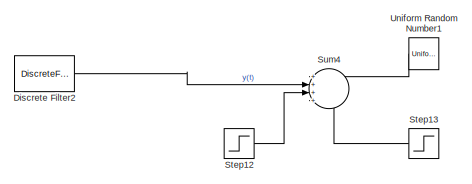
[diagram: root canvas - part 1/5, top right region]
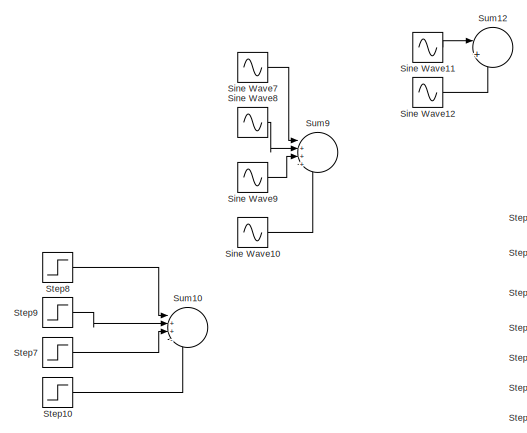
[diagram: root canvas - part 2/5, top left region]
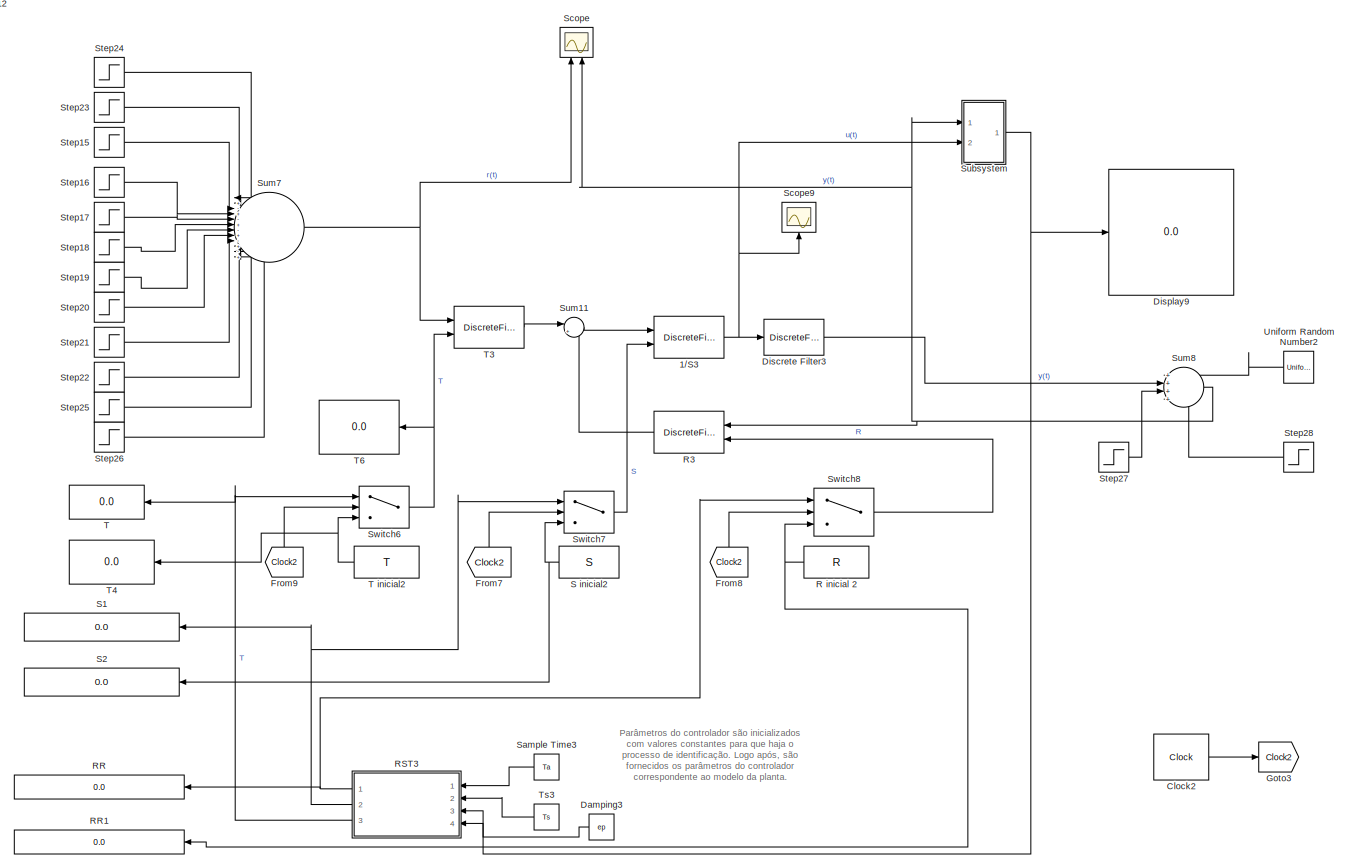
[diagram: root canvas - part 3/5, top center region]
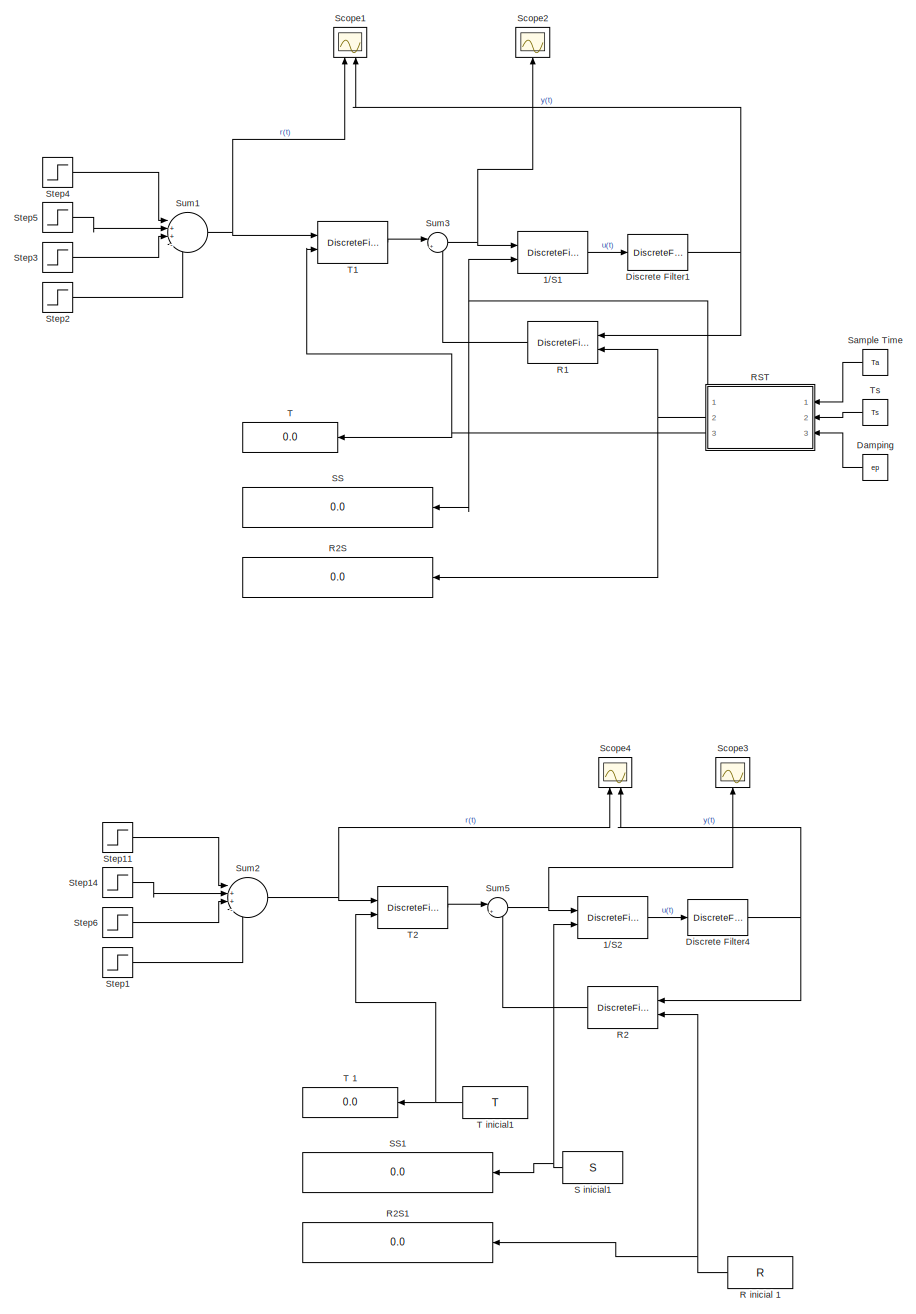
[diagram: root canvas - part 4/5, middle right region]
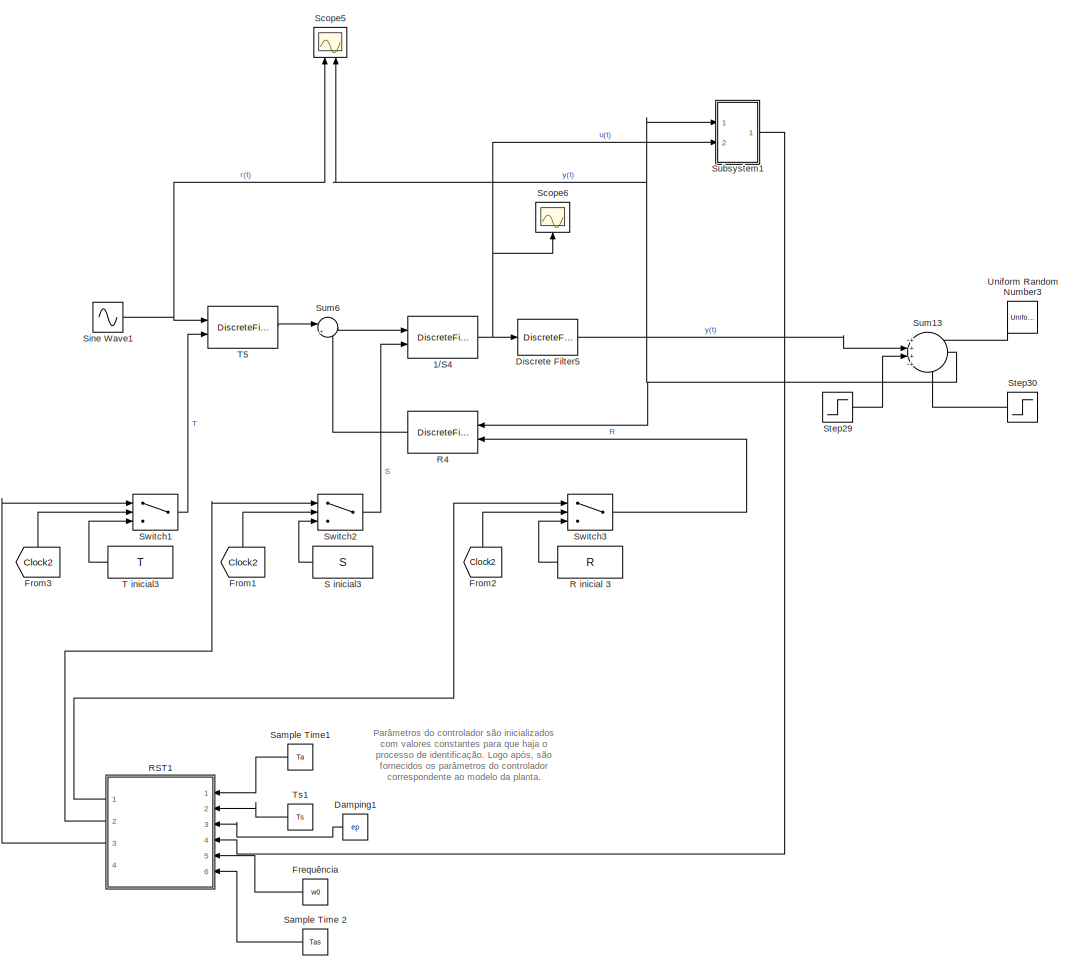
[diagram: root canvas - part 5/5, bottom center region]
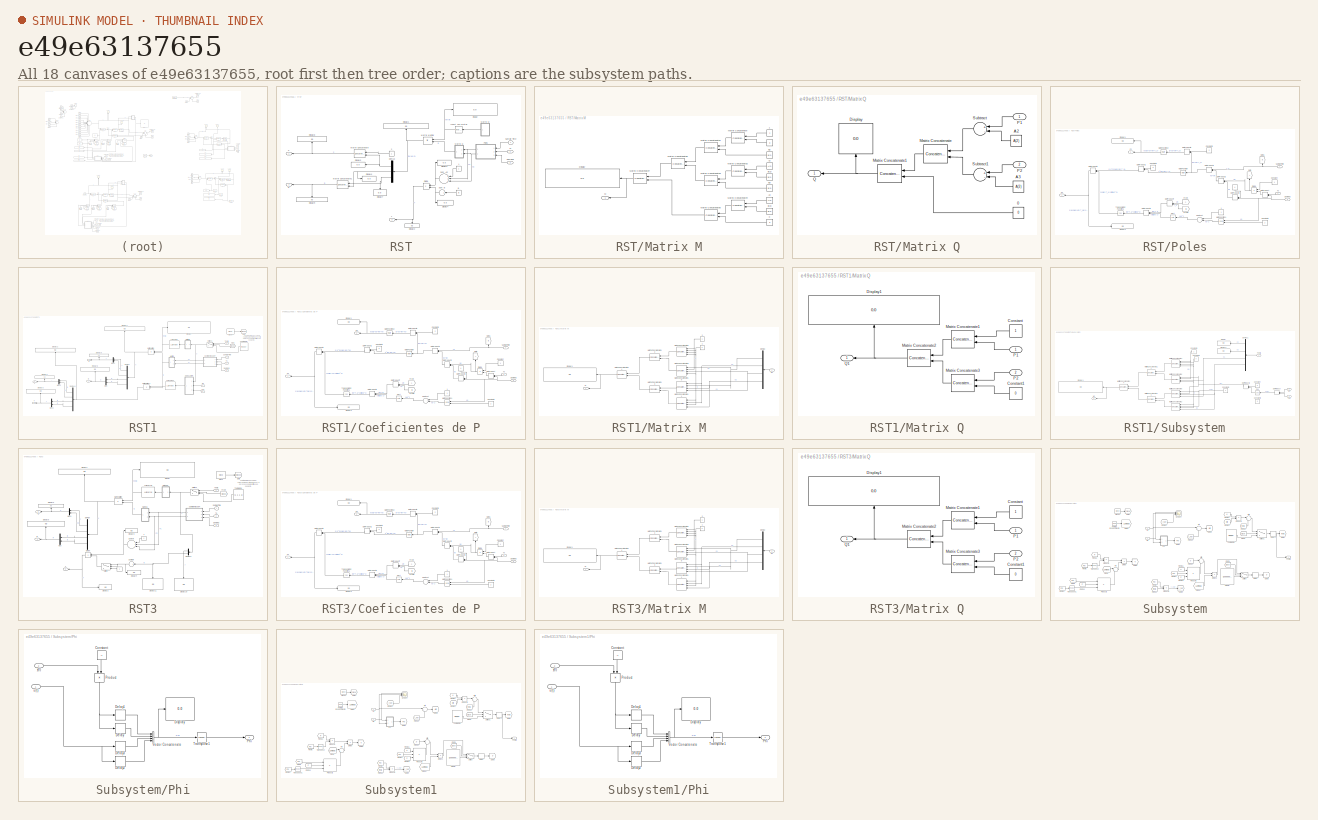
[diagram: thumbnail index - all 18 canvases of the model, root first then tree order]
MODEL slx_e49e63137655
KIND model
CONFIG AbsTol = auto
CONFIG EnableMultiTasking = off
CONFIG FixedStep = auto
CONFIG MaxStep = auto
CONFIG MinStep = auto
CONFIG RelTol = 1e-3
CONFIG SampleTimeConstraint = Unconstrained
CONFIG Solver = VariableStepAuto
CONFIG SolverName = VariableStepAuto
CONFIG StartTime = 0.0
CONFIG StopTime = 150
BLOCK [DiscreteFilter] 1//S1
  Commented = on
  Denominator = 1
  DenominatorSource = Input port
  InputPortMap = u0,p3
  Numerator = 1
  Ports = [2, 1]
  a0EqualsOne = on
BLOCK [DiscreteFilter] 1//S2
  Commented = on
  Denominator = 1
  DenominatorSource = Input port
  InputPortMap = u0,p3
  Numerator = 1
  Ports = [2, 1]
  a0EqualsOne = on
BLOCK [DiscreteFilter] 1//S3
  Denominator = 1
  DenominatorSource = Input port
  InputPortMap = u0,p3
  Numerator = 1
  Ports = [2, 1]
  a0EqualsOne = on
BLOCK [DiscreteFilter] 1//S4
  Commented = on
  Denominator = 1
  DenominatorSource = Input port
  InputPortMap = u0,p3
  Numerator = 1
  Ports = [2, 1]
  a0EqualsOne = on
BLOCK [Clock] Clock2
  DisplayTime = on
BLOCK [Constant] Damping
  Commented = on
  Value = ep
BLOCK [Constant] Damping1
  Commented = on
  Value = ep
BLOCK [Constant] Damping3
  Value = ep
BLOCK [DiscreteFilter] Discrete Filter1
  Commented = on
  Denominator = A
  InputPortMap = u0
  Numerator = B
  Ports = [1, 1]
  a0EqualsOne = on
BLOCK [DiscreteFilter] Discrete Filter2
  Commented = on
  Denominator = A
  InputPortMap = u0
  Numerator = B
  Ports = [1, 1]
  a0EqualsOne = on
BLOCK [DiscreteFilter] Discrete Filter3
  Denominator = A
  InputPortMap = u0
  Numerator = B
  Ports = [1, 1]
  a0EqualsOne = on
BLOCK [DiscreteFilter] Discrete Filter4
  Commented = on
  Denominator = A
  InputPortMap = u0
  Numerator = B
  Ports = [1, 1]
  a0EqualsOne = on
BLOCK [DiscreteFilter] Discrete Filter5
  Commented = on
  Denominator = A
  InputPortMap = u0
  Numerator = B
  Ports = [1, 1]
  a0EqualsOne = on
BLOCK [Display] Display9
  Decimation = 1
  Ports = [1]
BLOCK [Constant] Frequência
  Commented = on
  Value = w0
BLOCK [From] From1
  Commented = on
  GotoTag = Clock2
BLOCK [From] From2
  Commented = on
  GotoTag = Clock2
BLOCK [From] From3
  Commented = on
  GotoTag = Clock2
BLOCK [From] From7
  GotoTag = Clock2
BLOCK [From] From8
  GotoTag = Clock2
BLOCK [From] From9
  GotoTag = Clock2
BLOCK [Goto] Goto3
  GotoTag = Clock2
BLOCK [Constant] R inicial 1
  Commented = on
  Value = R
BLOCK [Constant] R inicial 2
  Value = R
BLOCK [Constant] R inicial 3
  Commented = on
  Value = R
BLOCK [DiscreteFilter] R1
  Commented = on
  Denominator = 1
  InputPortMap = u0,p1
  Numerator = [-620.2 131.3]
  NumeratorSource = Input port
  Ports = [2, 1]
BLOCK [DiscreteFilter] R2
  Commented = on
  Denominator = 1
  InputPortMap = u0,p1
  Numerator = [-620.2 131.3]
  NumeratorSource = Input port
  Ports = [2, 1]
BLOCK [Display] R2S
  Commented = on
  Decimation = 1
  Ports = [1]
BLOCK [Display] R2S1
  Commented = on
  Decimation = 1
  Ports = [1]
BLOCK [DiscreteFilter] R3
  Denominator = 1
  InputPortMap = u0,p1
  Numerator = [-620.2 131.3]
  NumeratorSource = Input port
  Ports = [2, 1]
BLOCK [DiscreteFilter] R4
  Commented = on
  Denominator = 1
  InputPortMap = u0,p1
  Numerator = [-620.2 131.3]
  NumeratorSource = Input port
  Ports = [2, 1]
BLOCK [Display] RR
  Decimation = 1
  Ports = [1]
BLOCK [Display] RR1
  Decimation = 1
  Ports = [1]
BLOCK [SubSystem] RST
  Commented = on
  Ports = [3, 3]
  RequestExecContextInheritance = off
BLOCK [Constant] RST/1
BLOCK [Constant] RST/2
BLOCK [Constant] RST/B
  Value = B
BLOCK [Inport] RST/Damping
  IconDisplay = Port number
  Port = 3
BLOCK [Demux] RST/Demux
  DisplayOption = bar
  Outputs = 3
  Ports = [1, 3]
BLOCK [Display] RST/Display
  Decimation = 1
  Ports = [1]
BLOCK [Display] RST/Display1
  Decimation = 1
  Ports = [1]
BLOCK [Display] RST/Display2
  Decimation = 1
  Ports = [1]
BLOCK [Display] RST/Display3
  Decimation = 1
  Ports = [1]
BLOCK [Display] RST/Display4
  Decimation = 1
  Ports = [1]
BLOCK [Display] RST/Display5
  Decimation = 1
  Ports = [1]
BLOCK [Display] RST/Display6
  Decimation = 1
  Ports = [1]
BLOCK [Display] RST/Display7
  Decimation = 1
  Ports = [1]
BLOCK [Display] RST/Display8
  Decimation = 1
  Ports = [1]
BLOCK [Display] RST/Display9
  Decimation = 1
  Ports = [1]
BLOCK [Product] RST/Divide
  InputSameDT = off
  Inputs = */
  OutDataTypeStr = Inherit: Inherit via internal rule
  Ports = [2, 1]
  RndMeth = Floor
  SaturateOnIntegerOverflow = off
BLOCK [Reference] RST/Invert 3x3 Matrix  REF=aerolibutil/Invert 
3x3 Matrix
  Ports = [1, 1]
  SourceBlock = aerolibutil/Invert \n3x3 Matrix
  SourceProductBaseCode = AE
  SourceProductName = Aerospace Blockset
  SourceType = Invert 3x3 Matrix
BLOCK [Concatenate] RST/Matrix Concatenate
  ConcatenateDimension = 2
  Mode = Multidimensional array
  Ports = [2, 1]
BLOCK [Concatenate] RST/Matrix Concatenate1
  ConcatenateDimension = 2
  Mode = Multidimensional array
  Ports = [2, 1]
BLOCK [SubSystem] RST/Matrix M
  Ports = [0, 1]
  RequestExecContextInheritance = off
BLOCK [Constant] RST/Matrix M/ 
  Value = 0
BLOCK [Constant] RST/Matrix M/ 0
  Value = 0
BLOCK [Constant] RST/Matrix M/ B(2)
  Value = B(2)
BLOCK [Constant] RST/Matrix M/ B(3)
  Value = B(3)
BLOCK [Constant] RST/Matrix M/ B2
  Value = B(2)
BLOCK [Constant] RST/Matrix M/ B3
  Value = B(3)
BLOCK [Constant] RST/Matrix M/1
BLOCK [Constant] RST/Matrix M/A2
  Value = A(2)
BLOCK [Constant] RST/Matrix M/A3
  Value = A(3)
BLOCK [Display] RST/Matrix M/Display
  Decimation = 1
  Ports = [1]
BLOCK [Outport] RST/Matrix M/M
  IconDisplay = Port number
BLOCK [Concatenate] RST/Matrix M/Matrix Concatenate
  ConcatenateDimension = 2
  Mode = Multidimensional array
  Ports = [2, 1]
BLOCK [Concatenate] RST/Matrix M/Matrix Concatenate1
  ConcatenateDimension = 2
  Mode = Multidimensional array
  Ports = [2, 1]
BLOCK [Concatenate] RST/Matrix M/Matrix Concatenate2
  ConcatenateDimension = 2
  Mode = Multidimensional array
  Ports = [2, 1]
BLOCK [Concatenate] RST/Matrix M/Matrix Concatenate3
  ConcatenateDimension = 2
  Mode = Multidimensional array
  Ports = [2, 1]
BLOCK [Concatenate] RST/Matrix M/Matrix Concatenate4
  ConcatenateDimension = 2
  Mode = Multidimensional array
  Ports = [2, 1]
BLOCK [Concatenate] RST/Matrix M/Matrix Concatenate5
  ConcatenateDimension = 2
  Mode = Multidimensional array
  Ports = [2, 1]
BLOCK [Concatenate] RST/Matrix M/Matrix Concatenate6
  Mode = Multidimensional array
  Ports = [2, 1]
BLOCK [Concatenate] RST/Matrix M/Matrix Concatenate7
  Mode = Multidimensional array
  Ports = [2, 1]
BLOCK [Product] RST/Matrix Multiply
  InputSameDT = off
  Multiplication = Matrix(*)
  OutDataTypeStr = Inherit: Inherit via internal rule
  Ports = [2, 1]
  RndMeth = Floor
  SaturateOnIntegerOverflow = off
BLOCK [SubSystem] RST/Matrix Q
  Ports = [2, 1]
  RequestExecContextInheritance = off
BLOCK [Constant] RST/Matrix Q/0
  Value = 0
BLOCK [Constant] RST/Matrix Q/A2
  Value = A(2)
BLOCK [Constant] RST/Matrix Q/A3
  Value = A(3)
BLOCK [Display] RST/Matrix Q/Display
  Decimation = 1
  Ports = [1]
BLOCK [Concatenate] RST/Matrix Q/Matrix Concatenate
  Mode = Multidimensional array
  Ports = [2, 1]
BLOCK [Concatenate] RST/Matrix Q/Matrix Concatenate1
  Mode = Multidimensional array
  Ports = [2, 1]
BLOCK [Inport] RST/Matrix Q/P1
  IconDisplay = Port number
BLOCK [Inport] RST/Matrix Q/P2
  IconDisplay = Port number
  Port = 2
BLOCK [Outport] RST/Matrix Q/Q
  IconDisplay = Port number
BLOCK [Sum] RST/Matrix Q/Subtract
  InputSameDT = off
  Inputs = +-
  OutDataTypeStr = Inherit: Inherit via internal rule
  Ports = [2, 1]
  SaturateOnIntegerOverflow = off
BLOCK [Sum] RST/Matrix Q/Subtract1
  InputSameDT = off
  Inputs = +-
  OutDataTypeStr = Inherit: Inherit via internal rule
  Ports = [2, 1]
  SaturateOnIntegerOverflow = off
BLOCK [SubSystem] RST/Poles
  Ports = [3, 2]
  RequestExecContextInheritance = off
BLOCK [Constant] RST/Poles/ 
  Value = -1
BLOCK [Constant] RST/Poles/1
BLOCK [Constant] RST/Poles/Constant
  Value = 4
BLOCK [Constant] RST/Poles/Constant1
  Value = -2
BLOCK [Constant] RST/Poles/Constant2
  Value = 2
BLOCK [Constant] RST/Poles/Constant3
  Value = 2
BLOCK [Inport] RST/Poles/Damping
  IconDisplay = Port number
  Port = 3
BLOCK [Display] RST/Poles/Display1
  Decimation = 1
  Ports = [1]
BLOCK [Display] RST/Poles/Display3
  Decimation = 1
  Ports = [1]
BLOCK [Product] RST/Poles/Divide
  InputSameDT = off
  Inputs = */
  OutDataTypeStr = Inherit: Inherit via internal rule
  Ports = [2, 1]
  RndMeth = Floor
  SaturateOnIntegerOverflow = off
BLOCK [DotProduct] RST/Poles/Dot Product
  OutDataTypeStr = Inherit: Inherit via internal rule
BLOCK [DotProduct] RST/Poles/Dot Product1
  OutDataTypeStr = Inherit: Inherit via internal rule
BLOCK [DotProduct] RST/Poles/Dot Product2
  OutDataTypeStr = Inherit: Inherit via internal rule
BLOCK [DotProduct] RST/Poles/Dot Product3
  OutDataTypeStr = Inherit: Inherit via internal rule
BLOCK [DotProduct] RST/Poles/Dot Product4
  OutDataTypeStr = Inherit: Inherit via internal rule
BLOCK [DotProduct] RST/Poles/Dot Product5
  OutDataTypeStr = Inherit: Inherit via internal rule
BLOCK [DotProduct] RST/Poles/Dot Product6
  OutDataTypeStr = Inherit: Inherit via internal rule
BLOCK [DotProduct] RST/Poles/Dot Product7
  OutDataTypeStr = Inherit: Inherit via internal rule
BLOCK [DotProduct] RST/Poles/Dot Product8
  OutDataTypeStr = Inherit: Inherit via internal rule
BLOCK [From] RST/Poles/From
BLOCK [From] RST/Poles/From1
  GotoTag = B
BLOCK [Goto] RST/Poles/Goto
BLOCK [Goto] RST/Poles/Goto1
  GotoTag = B
BLOCK [Math] RST/Poles/Math Function
  Ports = [1, 1]
BLOCK [Math] RST/Poles/Math Function1
  Operator = pow
  Ports = [2, 1]
BLOCK [Math] RST/Poles/Math Function2
  Ports = [1, 1]
BLOCK [Outport] RST/Poles/P1
  IconDisplay = Port number
BLOCK [Outport] RST/Poles/P2
  IconDisplay = Port number
  Port = 2
BLOCK [Inport] RST/Poles/Sample Time
  IconDisplay = Port number
BLOCK [Sqrt] RST/Poles/Sqrt
BLOCK [Sum] RST/Poles/Subtract
  InputSameDT = off
  Inputs = +-
  OutDataTypeStr = Inherit: Inherit via internal rule
  Ports = [2, 1]
  SaturateOnIntegerOverflow = off
BLOCK [Trigonometry] RST/Poles/Trigonometric Function1
  Operator = cos
  Ports = [1, 1]
BLOCK [Inport] RST/Poles/Ts
  IconDisplay = Port number
  Port = 2
BLOCK [Outport] RST/R
  IconDisplay = Port number
  Port = 2
BLOCK [Outport] RST/S
  IconDisplay = Port number
BLOCK [Inport] RST/Sample Time
  IconDisplay = Port number
BLOCK [Sum] RST/Sum Am
  InputSameDT = off
  Inputs = +++
  OutDataTypeStr = Inherit: Inherit via internal rule
  Ports = [3, 1]
  SaturateOnIntegerOverflow = off
BLOCK [Sum] RST/Sum B
  InputSameDT = off
  Inputs = +
  OutDataTypeStr = Inherit: Inherit via internal rule
  Ports = [1, 1]
  SaturateOnIntegerOverflow = off
BLOCK [Outport] RST/T
  IconDisplay = Port number
  Port = 3
BLOCK [Inport] RST/Ts
  IconDisplay = Port number
  Port = 2
BLOCK [SubSystem] RST1
  Commented = on
  Ports = [6, 4]
  RequestExecContextInheritance = off
BLOCK [Reference] RST1/ LU Inverse  REF=dspinverses/ LU Inverse
  Ports = [1, 1]
  SourceBlock = dspinverses/ LU Inverse
  SourceProductBaseCode = DS
  SourceProductName = DSP System Toolbox
  SourceType = LU Inverse
BLOCK [Reference] RST1/ LU Inverse1  REF=dspinverses/ LU Inverse
  Ports = [1, 1]
  SourceBlock = dspinverses/ LU Inverse
  SourceProductBaseCode = DS
  SourceProductName = DSP System Toolbox
  SourceType = LU Inverse
BLOCK [Clock] RST1/Clock
  DisplayTime = on
BLOCK [SubSystem] RST1/Coeficientes de P
  Ports = [3, 2]
  RequestExecContextInheritance = off
BLOCK [Constant] RST1/Coeficientes de P/ 
  Value = -1
BLOCK [Constant] RST1/Coeficientes de P/1
BLOCK [Constant] RST1/Coeficientes de P/Constant
  Value = 4
BLOCK [Constant] RST1/Coeficientes de P/Constant1
  Value = -2
BLOCK [Constant] RST1/Coeficientes de P/Constant2
  Value = 2
BLOCK [Constant] RST1/Coeficientes de P/Constant3
  Value = 2
BLOCK [Inport] RST1/Coeficientes de P/Damping
  IconDisplay = Port number
  Port = 3
BLOCK [Display] RST1/Coeficientes de P/Display1
  Decimation = 1
  Ports = [1]
BLOCK [Display] RST1/Coeficientes de P/Display3
  Decimation = 1
  Ports = [1]
BLOCK [Product] RST1/Coeficientes de P/Divide
  InputSameDT = off
  Inputs = */
  OutDataTypeStr = Inherit: Inherit via internal rule
  Ports = [2, 1]
  RndMeth = Floor
  SaturateOnIntegerOverflow = off
BLOCK [DotProduct] RST1/Coeficientes de P/Dot Product
  OutDataTypeStr = Inherit: Inherit via internal rule
BLOCK [DotProduct] RST1/Coeficientes de P/Dot Product1
  OutDataTypeStr = Inherit: Inherit via internal rule
BLOCK [DotProduct] RST1/Coeficientes de P/Dot Product2
  OutDataTypeStr = Inherit: Inherit via internal rule
BLOCK [DotProduct] RST1/Coeficientes de P/Dot Product3
  OutDataTypeStr = Inherit: Inherit via internal rule
BLOCK [DotProduct] RST1/Coeficientes de P/Dot Product4
  OutDataTypeStr = Inherit: Inherit via internal rule
BLOCK [DotProduct] RST1/Coeficientes de P/Dot Product5
  OutDataTypeStr = Inherit: Inherit via internal rule
BLOCK [DotProduct] RST1/Coeficientes de P/Dot Product6
  OutDataTypeStr = Inherit: Inherit via internal rule
BLOCK [DotProduct] RST1/Coeficientes de P/Dot Product7
  OutDataTypeStr = Inherit: Inherit via internal rule
BLOCK [DotProduct] RST1/Coeficientes de P/Dot Product8
  OutDataTypeStr = Inherit: Inherit via internal rule
BLOCK [From] RST1/Coeficientes de P/From
BLOCK [From] RST1/Coeficientes de P/From1
  GotoTag = B
BLOCK [Goto] RST1/Coeficientes de P/Goto
BLOCK [Goto] RST1/Coeficientes de P/Goto1
  GotoTag = B
BLOCK [Math] RST1/Coeficientes de P/Math Function
  Ports = [1, 1]
BLOCK [Math] RST1/Coeficientes de P/Math Function1
  Operator = pow
  Ports = [2, 1]
BLOCK [Math] RST1/Coeficientes de P/Math Function2
  Ports = [1, 1]
BLOCK [Outport] RST1/Coeficientes de P/P1
  IconDisplay = Port number
BLOCK [Outport] RST1/Coeficientes de P/P2
  IconDisplay = Port number
  Port = 2
BLOCK [Inport] RST1/Coeficientes de P/Sample Time
  IconDisplay = Port number
BLOCK [Sqrt] RST1/Coeficientes de P/Sqrt
BLOCK [Sum] RST1/Coeficientes de P/Subtract
  InputSameDT = off
  Inputs = +-
  OutDataTypeStr = Inherit: Inherit via internal rule
  Ports = [2, 1]
  SaturateOnIntegerOverflow = off
BLOCK [Trigonometry] RST1/Coeficientes de P/Trigonometric Function1
  Operator = cos
  Ports = [1, 1]
BLOCK [Inport] RST1/Coeficientes de P/Ts
  IconDisplay = Port number
  Port = 2
BLOCK [Inport] RST1/Damping
  IconDisplay = Port number
  Port = 3
BLOCK [Demux] RST1/Demux
  DisplayOption = bar
  Ports = [1, 4]
BLOCK [Demux] RST1/Demux1
  DisplayOption = bar
  Ports = [1, 4]
BLOCK [Display] RST1/Display
  Decimation = 1
  Ports = [1]
BLOCK [Display] RST1/Display1
  Decimation = 1
  Ports = [1]
BLOCK [Display] RST1/Display2
  Decimation = 1
  Ports = [1]
BLOCK [Display] RST1/Display3
  Decimation = 1
  Ports = [1]
BLOCK [Display] RST1/Display4
  Decimation = 1
  Ports = [1]
BLOCK [Display] RST1/Display8
  Decimation = 1
  Ports = [1]
BLOCK [Display] RST1/Display9
  Decimation = 1
  Ports = [1]
BLOCK [From] RST1/From
  GotoTag = Clock3
BLOCK [Goto] RST1/Goto
  GotoTag = Clock3
BLOCK [Outport] RST1/L
  IconDisplay = Port number
  Port = 4
BLOCK [SubSystem] RST1/Matrix M
  Ports = [1, 1]
  RequestExecContextInheritance = off
BLOCK [Constant] RST1/Matrix M/ 1
  Value = 0
BLOCK [Constant] RST1/Matrix M/2
BLOCK [Demux] RST1/Matrix M/Demux
  DisplayOption = bar
  Ports = [1, 4]
BLOCK [Display] RST1/Matrix M/Display1
  Decimation = 1
  Ports = [1]
BLOCK [Inport] RST1/Matrix M/In1
  IconDisplay = Port number
BLOCK [Outport] RST1/Matrix M/M
  IconDisplay = Port number
BLOCK [Concatenate] RST1/Matrix M/Matrix Concatenate10
  ConcatenateDimension = 2
  Mode = Multidimensional array
  NumInputs = 4
  Ports = [4, 1]
BLOCK [Concatenate] RST1/Matrix M/Matrix Concatenate11
  ConcatenateDimension = 2
  Mode = Multidimensional array
  NumInputs = 4
  Ports = [4, 1]
BLOCK [Concatenate] RST1/Matrix M/Matrix Concatenate12
  Mode = Multidimensional array
  Ports = [2, 1]
BLOCK [Concatenate] RST1/Matrix M/Matrix Concatenate13
  Mode = Multidimensional array
  Ports = [2, 1]
BLOCK [Concatenate] RST1/Matrix M/Matrix Concatenate14
  Mode = Multidimensional array
  Ports = [2, 1]
BLOCK [Concatenate] RST1/Matrix M/Matrix Concatenate6
  ConcatenateDimension = 2
  Mode = Multidimensional array
  NumInputs = 4
  Ports = [4, 1]
BLOCK [Concatenate] RST1/Matrix M/Matrix Concatenate9
  ConcatenateDimension = 2
  Mode = Multidimensional array
  NumInputs = 4
  Ports = [4, 1]
BLOCK [Product] RST1/Matrix Multiply
  InputSameDT = off
  Multiplication = Matrix(*)
  OutDataTypeStr = Inherit: Inherit via internal rule
  Ports = [2, 1]
  RndMeth = Floor
  SaturateOnIntegerOverflow = off
BLOCK [Product] RST1/Matrix Multiply1
  InputSameDT = off
  Multiplication = Matrix(*)
  OutDataTypeStr = Inherit: Inherit via internal rule
  Ports = [2, 1]
  RndMeth = Floor
  SaturateOnIntegerOverflow = off
BLOCK [SubSystem] RST1/Matrix Q
  Ports = [2, 1]
  RequestExecContextInheritance = off
BLOCK [Constant] RST1/Matrix Q/Constant
BLOCK [Constant] RST1/Matrix Q/Constant1
  Value = 0
BLOCK [Display] RST1/Matrix Q/Display1
  Decimation = 1
  Ports = [1]
BLOCK [Concatenate] RST1/Matrix Q/Matrix Concatenate1
  Mode = Multidimensional array
  Ports = [2, 1]
BLOCK [Concatenate] RST1/Matrix Q/Matrix Concatenate2
  Mode = Multidimensional array
  Ports = [2, 1]
BLOCK [Concatenate] RST1/Matrix Q/Matrix Concatenate3
  Mode = Multidimensional array
  Ports = [2, 1]
BLOCK [Inport] RST1/Matrix Q/P1
  IconDisplay = Port number
BLOCK [Inport] RST1/Matrix Q/P2
  IconDisplay = Port number
  Port = 2
BLOCK [Outport] RST1/Matrix Q/Q1
  IconDisplay = Port number
BLOCK [Mux] RST1/Mux
  DisplayOption = bar
  Inputs = 2
  Ports = [2, 1]
BLOCK [Mux] RST1/Mux1
  DisplayOption = bar
  Inputs = 2
  Ports = [2, 1]
BLOCK [Mux] RST1/Mux2
  DisplayOption = bar
  Inputs = 2
  Ports = [2, 1]
BLOCK [Mux] RST1/Mux3
  DisplayOption = bar
  Inputs = 2
  Ports = [2, 1]
BLOCK [Outport] RST1/R
  IconDisplay = Port number
BLOCK [Outport] RST1/S
  IconDisplay = Port number
  Port = 2
BLOCK [Inport] RST1/Sample Time
  IconDisplay = Port number
BLOCK [SubSystem] RST1/Subsystem
  Ports = [3, 1]
  RequestExecContextInheritance = off
BLOCK [Constant] RST1/Subsystem/Constant
  Value = -2
BLOCK [Constant] RST1/Subsystem/Constant1
BLOCK [Constant] RST1/Subsystem/Constant2
  Value = 0
BLOCK [Constant] RST1/Subsystem/Constant3
  Value = 0
BLOCK [Constant] RST1/Subsystem/Constant4
BLOCK [Trigonometry] RST1/Subsystem/Cos
  Operator = cos
  Ports = [1, 1]
BLOCK [Demux] RST1/Subsystem/Demux1
  DisplayOption = bar
  Ports = [1, 4]
BLOCK [Display] RST1/Subsystem/Display
  Decimation = 1
  Ports = [1]
BLOCK [Display] RST1/Subsystem/Display1
  Decimation = 1
  Ports = [1]
BLOCK [Display] RST1/Subsystem/Display2
  Decimation = 1
  Ports = [1]
BLOCK [DotProduct] RST1/Subsystem/Dot Product
  OutDataTypeStr = Inherit: Inherit via internal rule
BLOCK [DotProduct] RST1/Subsystem/Dot Product1
  OutDataTypeStr = Inherit: Inherit via internal rule
BLOCK [Outport] RST1/Subsystem/M2
  IconDisplay = Port number
BLOCK [Concatenate] RST1/Subsystem/Matrix Concatenate12
  Mode = Multidimensional array
  Ports = [2, 1]
BLOCK [Concatenate] RST1/Subsystem/Matrix Concatenate13
  Mode = Multidimensional array
  Ports = [2, 1]
BLOCK [Concatenate] RST1/Subsystem/Matrix Concatenate14
  Mode = Multidimensional array
  Ports = [2, 1]
BLOCK [Concatenate] RST1/Subsystem/Matrix Concatenate2
  ConcatenateDimension = 2
  Mode = Multidimensional array
  NumInputs = 4
  Ports = [4, 1]
BLOCK [Concatenate] RST1/Subsystem/Matrix Concatenate4
  ConcatenateDimension = 2
  Mode = Multidimensional array
  NumInputs = 4
  Ports = [4, 1]
BLOCK [Concatenate] RST1/Subsystem/Matrix Concatenate5
  ConcatenateDimension = 2
  Mode = Multidimensional array
  NumInputs = 4
  Ports = [4, 1]
BLOCK [Concatenate] RST1/Subsystem/Matrix Concatenate6
  ConcatenateDimension = 2
  Mode = Multidimensional array
  NumInputs = 4
  Ports = [4, 1]
BLOCK [Inport] RST1/Subsystem/Tas
  IconDisplay = Port number
  Port = 3
BLOCK [Inport] RST1/Subsystem/Theta
  IconDisplay = Port number
BLOCK [Inport] RST1/Subsystem/w0
  IconDisplay = Port number
  Port = 2
BLOCK [Switch] RST1/Switch1
  Criteria = u2 > Threshold
  InputSameDT = off
  SaturateOnIntegerOverflow = off
  Threshold = 1
BLOCK [Outport] RST1/T
  IconDisplay = Port number
  Port = 3
BLOCK [Inport] RST1/Tas
  IconDisplay = Port number
  Port = 6
BLOCK [Inport] RST1/Theta
  IconDisplay = Port number
  Port = 4
BLOCK [Constant] RST1/Theta Inicial
  Value = [1 1 1 1]
BLOCK [Inport] RST1/Ts
  IconDisplay = Port number
  Port = 2
BLOCK [Inport] RST1/w0
  IconDisplay = Port number
  Port = 5
BLOCK [SubSystem] RST3
  Ports = [4, 3]
  RequestExecContextInheritance = off
BLOCK [Constant] RST3/ 
BLOCK [Reference] RST3/ LU Inverse  REF=dspinverses/ LU Inverse
  Ports = [1, 1]
  SourceBlock = dspinverses/ LU Inverse
  SourceProductBaseCode = DS
  SourceProductName = DSP System Toolbox
  SourceType = LU Inverse
BLOCK [Constant] RST3/1
BLOCK [Clock] RST3/Clock
  DisplayTime = on
BLOCK [SubSystem] RST3/Coeficientes de P
  Ports = [3, 2]
  RequestExecContextInheritance = off
BLOCK [Constant] RST3/Coeficientes de P/ 
  Value = -1
BLOCK [Constant] RST3/Coeficientes de P/1
BLOCK [Constant] RST3/Coeficientes de P/Constant
  Value = 4
BLOCK [Constant] RST3/Coeficientes de P/Constant1
  Value = -2
BLOCK [Constant] RST3/Coeficientes de P/Constant2
  Value = 2
BLOCK [Constant] RST3/Coeficientes de P/Constant3
  Value = 2
BLOCK [Inport] RST3/Coeficientes de P/Damping
  IconDisplay = Port number
  Port = 3
BLOCK [Display] RST3/Coeficientes de P/Display1
  Decimation = 1
  Ports = [1]
BLOCK [Display] RST3/Coeficientes de P/Display3
  Decimation = 1
  Ports = [1]
BLOCK [Product] RST3/Coeficientes de P/Divide
  InputSameDT = off
  Inputs = */
  OutDataTypeStr = Inherit: Inherit via internal rule
  Ports = [2, 1]
  RndMeth = Floor
  SaturateOnIntegerOverflow = off
BLOCK [DotProduct] RST3/Coeficientes de P/Dot Product
  OutDataTypeStr = Inherit: Inherit via internal rule
BLOCK [DotProduct] RST3/Coeficientes de P/Dot Product1
  OutDataTypeStr = Inherit: Inherit via internal rule
BLOCK [DotProduct] RST3/Coeficientes de P/Dot Product2
  OutDataTypeStr = Inherit: Inherit via internal rule
BLOCK [DotProduct] RST3/Coeficientes de P/Dot Product3
  OutDataTypeStr = Inherit: Inherit via internal rule
BLOCK [DotProduct] RST3/Coeficientes de P/Dot Product4
  OutDataTypeStr = Inherit: Inherit via internal rule
BLOCK [DotProduct] RST3/Coeficientes de P/Dot Product5
  OutDataTypeStr = Inherit: Inherit via internal rule
BLOCK [DotProduct] RST3/Coeficientes de P/Dot Product6
  OutDataTypeStr = Inherit: Inherit via internal rule
BLOCK [DotProduct] RST3/Coeficientes de P/Dot Product7
  OutDataTypeStr = Inherit: Inherit via internal rule
BLOCK [DotProduct] RST3/Coeficientes de P/Dot Product8
  OutDataTypeStr = Inherit: Inherit via internal rule
BLOCK [From] RST3/Coeficientes de P/From
BLOCK [From] RST3/Coeficientes de P/From1
  GotoTag = B
BLOCK [Goto] RST3/Coeficientes de P/Goto
BLOCK [Goto] RST3/Coeficientes de P/Goto1
  GotoTag = B
BLOCK [Math] RST3/Coeficientes de P/Math Function
  Ports = [1, 1]
BLOCK [Math] RST3/Coeficientes de P/Math Function1
  Operator = pow
  Ports = [2, 1]
BLOCK [Math] RST3/Coeficientes de P/Math Function2
  Ports = [1, 1]
BLOCK [Outport] RST3/Coeficientes de P/P1
  IconDisplay = Port number
BLOCK [Outport] RST3/Coeficientes de P/P2
  IconDisplay = Port number
  Port = 2
BLOCK [Inport] RST3/Coeficientes de P/Sample Time
  IconDisplay = Port number
BLOCK [Sqrt] RST3/Coeficientes de P/Sqrt
BLOCK [Sum] RST3/Coeficientes de P/Subtract
  InputSameDT = off
  Inputs = +-
  OutDataTypeStr = Inherit: Inherit via internal rule
  Ports = [2, 1]
  SaturateOnIntegerOverflow = off
BLOCK [Trigonometry] RST3/Coeficientes de P/Trigonometric Function1
  Operator = cos
  Ports = [1, 1]
BLOCK [Inport] RST3/Coeficientes de P/Ts
  IconDisplay = Port number
  Port = 2
BLOCK [Inport] RST3/Damping
  IconDisplay = Port number
  Port = 3
BLOCK [Demux] RST3/Demux
  DisplayOption = bar
  Ports = [1, 4]
BLOCK [Demux] RST3/Demux1
  DisplayOption = bar
  Outputs = 2
  Ports = [1, 2]
BLOCK [Display] RST3/Display
  Decimation = 1
  Ports = [1]
BLOCK [Display] RST3/Display1
  Decimation = 1
  Ports = [1]
BLOCK [Display] RST3/Display10
  Decimation = 1
  Ports = [1]
BLOCK [Display] RST3/Display11
  Decimation = 1
  Ports = [1]
BLOCK [Display] RST3/Display2
  Decimation = 1
  Ports = [1]
BLOCK [Display] RST3/Display3
  Decimation = 1
  Ports = [1]
BLOCK [Display] RST3/Display4
  Decimation = 1
  Ports = [1]
BLOCK [Display] RST3/Display8
  Decimation = 1
  Ports = [1]
BLOCK [Display] RST3/Display9
  Decimation = 1
  Ports = [1]
BLOCK [Product] RST3/Divide
  InputSameDT = off
  Inputs = */
  OutDataTypeStr = Inherit: Inherit via internal rule
  Ports = [2, 1]
  RndMeth = Floor
  SaturateOnIntegerOverflow = off
BLOCK [From] RST3/From
  GotoTag = Clock3
BLOCK [Goto] RST3/Goto
  GotoTag = Clock3
BLOCK [SubSystem] RST3/Matrix M
  Ports = [1, 1]
  RequestExecContextInheritance = off
BLOCK [Constant] RST3/Matrix M/ 1
  Value = 0
BLOCK [Constant] RST3/Matrix M/2
BLOCK [Demux] RST3/Matrix M/Demux
  DisplayOption = bar
  Ports = [1, 4]
BLOCK [Display] RST3/Matrix M/Display1
  Decimation = 1
  Ports = [1]
BLOCK [Inport] RST3/Matrix M/In1
  IconDisplay = Port number
BLOCK [Outport] RST3/Matrix M/M
  IconDisplay = Port number
BLOCK [Concatenate] RST3/Matrix M/Matrix Concatenate10
  ConcatenateDimension = 2
  Mode = Multidimensional array
  NumInputs = 4
  Ports = [4, 1]
BLOCK [Concatenate] RST3/Matrix M/Matrix Concatenate11
  ConcatenateDimension = 2
  Mode = Multidimensional array
  NumInputs = 4
  Ports = [4, 1]
BLOCK [Concatenate] RST3/Matrix M/Matrix Concatenate12
  Mode = Multidimensional array
  Ports = [2, 1]
BLOCK [Concatenate] RST3/Matrix M/Matrix Concatenate13
  Mode = Multidimensional array
  Ports = [2, 1]
BLOCK [Concatenate] RST3/Matrix M/Matrix Concatenate14
  Mode = Multidimensional array
  Ports = [2, 1]
BLOCK [Concatenate] RST3/Matrix M/Matrix Concatenate6
  ConcatenateDimension = 2
  Mode = Multidimensional array
  NumInputs = 4
  Ports = [4, 1]
BLOCK [Concatenate] RST3/Matrix M/Matrix Concatenate9
  ConcatenateDimension = 2
  Mode = Multidimensional array
  NumInputs = 4
  Ports = [4, 1]
BLOCK [Product] RST3/Matrix Multiply
  InputSameDT = off
  Multiplication = Matrix(*)
  OutDataTypeStr = Inherit: Inherit via internal rule
  Ports = [2, 1]
  RndMeth = Floor
  SaturateOnIntegerOverflow = off
BLOCK [SubSystem] RST3/Matrix Q
  Ports = [2, 1]
  RequestExecContextInheritance = off
BLOCK [Constant] RST3/Matrix Q/Constant
BLOCK [Constant] RST3/Matrix Q/Constant1
  Value = 0
BLOCK [Display] RST3/Matrix Q/Display1
  Decimation = 1
  Ports = [1]
BLOCK [Concatenate] RST3/Matrix Q/Matrix Concatenate1
  Mode = Multidimensional array
  Ports = [2, 1]
BLOCK [Concatenate] RST3/Matrix Q/Matrix Concatenate2
  Mode = Multidimensional array
  Ports = [2, 1]
BLOCK [Concatenate] RST3/Matrix Q/Matrix Concatenate3
  Mode = Multidimensional array
  Ports = [2, 1]
BLOCK [Inport] RST3/Matrix Q/P1
  IconDisplay = Port number
BLOCK [Inport] RST3/Matrix Q/P2
  IconDisplay = Port number
  Port = 2
BLOCK [Outport] RST3/Matrix Q/Q1
  IconDisplay = Port number
BLOCK [Mux] RST3/Mux
  DisplayOption = bar
  Inputs = 2
  Ports = [2, 1]
BLOCK [Mux] RST3/Mux1
  DisplayOption = bar
  Inputs = 2
  Ports = [2, 1]
BLOCK [Outport] RST3/R
  IconDisplay = Port number
BLOCK [Outport] RST3/S
  IconDisplay = Port number
  Port = 2
BLOCK [Inport] RST3/Sample Time
  IconDisplay = Port number
BLOCK [Sum] RST3/Sum Am
  InputSameDT = off
  Inputs = +++
  OutDataTypeStr = Inherit: Inherit via internal rule
  Ports = [3, 1]
  SaturateOnIntegerOverflow = off
BLOCK [Sum] RST3/Sum Bm
  InputSameDT = off
  Inputs = +
  OutDataTypeStr = Inherit: Inherit via internal rule
  Ports = [1, 1]
  SaturateOnIntegerOverflow = off
BLOCK [Switch] RST3/Switch
  Criteria = u2 > Threshold
  InputSameDT = off
  SaturateOnIntegerOverflow = off
BLOCK [Switch] RST3/Switch1
  Criteria = u2 > Threshold
  InputSameDT = off
  SaturateOnIntegerOverflow = off
  Threshold = 1
BLOCK [Outport] RST3/T
  IconDisplay = Port number
  Port = 3
BLOCK [Inport] RST3/Theta
  IconDisplay = Port number
  Port = 4
BLOCK [Constant] RST3/Theta Inicial
  Value = [1 1 1 1]
BLOCK [Inport] RST3/Ts
  IconDisplay = Port number
  Port = 2
BLOCK [Constant] S inicial1
  Commented = on
  Value = S
BLOCK [Constant] S inicial2
  Value = S
BLOCK [Constant] S inicial3
  Commented = on
  Value = S
BLOCK [Display] S1
  Decimation = 1
  Ports = [1]
BLOCK [Display] S2
  Decimation = 1
  Ports = [1]
BLOCK [Display] SS
  Commented = on
  Decimation = 1
  Ports = [1]
BLOCK [Display] SS1
  Commented = on
  Decimation = 1
  Ports = [1]
BLOCK [Constant] Sample Time
  Commented = on
  Value = Ta
BLOCK [Constant] Sample Time 2
  Commented = on
  Value = Tas
BLOCK [Constant] Sample Time1
  Commented = on
  Value = Ta
BLOCK [Constant] Sample Time3
  Value = Ta
BLOCK [Scope] Scope
  Floating = off
  NumInputPorts = 2
  Ports = [2]
  ScopeSpecificationString = Simulink.scopes.TimeScopeBlockCfg('CurrentConfiguration', extmgr.ConfigurationSet(extmgr.Configuration('Core','General UI',true),extmgr.Configuration('Core','Source UI',true),extmgr.Configuration('Sources','WiredSimulink',true,'DataLoggingVariableName','ScopeData1'),extmgr.Configuration('Visuals','Time Domain',true,'SerializedDisplays',{struct('MinYLimReal','-0.80606','MaxYLimReal','3.05521','YLab...<+1466ch>
BLOCK [Scope] Scope1
  Commented = on
  Floating = off
  NumInputPorts = 2
  Ports = [2]
  ScopeSpecificationString = Simulink.scopes.TimeScopeBlockCfg('CurrentConfiguration', extmgr.ConfigurationSet(extmgr.Configuration('Core','General UI',true),extmgr.Configuration('Core','Source UI',true),extmgr.Configuration('Sources','WiredSimulink',true,'DataLoggingVariableName','ScopeData1'),extmgr.Configuration('Visuals','Time Domain',true,'SerializedDisplays',{struct('MinYLimReal','0.56066','MaxYLimReal','1.10165','YLabe...<+1464ch>
BLOCK [Scope] Scope2
  Commented = on
  Floating = off
  NumInputPorts = 1
  Ports = [1]
  ScopeSpecificationString = Simulink.scopes.TimeScopeBlockCfg('CurrentConfiguration', extmgr.ConfigurationSet(extmgr.Configuration('Core','General UI',true,'FigureColor',[0.156862745098039 0.156862745098039 0.156862745098039]),extmgr.Configuration('Core','Source UI',true),extmgr.Configuration('Sources','WiredSimulink',true,'DataLoggingVariableName','ScopeData1','DataLoggingSaveFormat','StructureWithTime','DataLoggingDecimati...<+3155ch>
BLOCK [Scope] Scope3
  Commented = on
  Floating = off
  NumInputPorts = 1
  Ports = [1]
  ScopeSpecificationString = Simulink.scopes.TimeScopeBlockCfg('CurrentConfiguration', extmgr.ConfigurationSet(extmgr.Configuration('Core','General UI',true,'FigureColor',[0.156862745098039 0.156862745098039 0.156862745098039]),extmgr.Configuration('Core','Source UI',true),extmgr.Configuration('Sources','WiredSimulink',true,'DataLoggingVariableName','ScopeData2','DataLoggingSaveFormat','StructureWithTime','DataLoggingDecimati...<+3149ch>
BLOCK [Scope] Scope4
  Commented = on
  Floating = off
  NumInputPorts = 2
  Ports = [2]
  ScopeSpecificationString = Simulink.scopes.TimeScopeBlockCfg('CurrentConfiguration', extmgr.ConfigurationSet(extmgr.Configuration('Core','General UI',true),extmgr.Configuration('Core','Source UI',true),extmgr.Configuration('Sources','WiredSimulink',true,'DataLoggingVariableName','ScopeData3'),extmgr.Configuration('Visuals','Time Domain',true,'SerializedDisplays',{struct('MinYLimReal','-0.12519','MaxYLimReal','1.1267','YLabe...<+1462ch>
BLOCK [Scope] Scope5
  Commented = on
  Floating = off
  NumInputPorts = 2
  Ports = [2]
  ScopeSpecificationString = Simulink.scopes.TimeScopeBlockCfg('CurrentConfiguration', extmgr.ConfigurationSet(extmgr.Configuration('Core','General UI',true),extmgr.Configuration('Core','Source UI',true),extmgr.Configuration('Sources','WiredSimulink',true,'DataLoggingVariableName','ScopeData4'),extmgr.Configuration('Visuals','Time Domain',true,'SerializedDisplays',{struct('MinYLimReal','-2.51596','MaxYLimReal','2.67211','YLab...<+1466ch>
BLOCK [Scope] Scope6
  Commented = on
  Floating = off
  NumInputPorts = 1
  Ports = [1]
  ScopeSpecificationString = Simulink.scopes.TimeScopeBlockCfg('CurrentConfiguration', extmgr.ConfigurationSet(extmgr.Configuration('Core','General UI',true,'FigureColor',[0.156862745098039 0.156862745098039 0.156862745098039]),extmgr.Configuration('Core','Source UI',true),extmgr.Configuration('Sources','WiredSimulink',true,'DataLoggingVariableName','ScopeData5','DataLoggingSaveFormat','StructureWithTime','DataLoggingDecimati...<+3168ch>
BLOCK [Scope] Scope9
  Floating = off
  NumInputPorts = 1
  Ports = [1]
  ScopeSpecificationString = Simulink.scopes.TimeScopeBlockCfg('CurrentConfiguration', extmgr.ConfigurationSet(extmgr.Configuration('Core','General UI',true,'FigureColor',[0.156862745098039 0.156862745098039 0.156862745098039]),extmgr.Configuration('Core','Source UI',true),extmgr.Configuration('Sources','WiredSimulink',true,'DataLoggingVariableName','ScopeData3','DataLoggingSaveFormat','StructureWithTime','DataLoggingDecimati...<+3168ch>
BLOCK [Sin] Sine Wave1
  Commented = on
  Ports = [0, 1]
  SampleTime = 0.1
BLOCK [Sin] Sine Wave10
  Frequency = 8
  Ports = [0, 1]
  SampleTime = 0
BLOCK [Sin] Sine Wave11
  Ports = [0, 1]
  SampleTime = 0
BLOCK [Sin] Sine Wave12
  Frequency = 2
  Ports = [0, 1]
  SampleTime = 0
BLOCK [Sin] Sine Wave7
  Ports = [0, 1]
  SampleTime = 0
BLOCK [Sin] Sine Wave8
  Frequency = 2
  Ports = [0, 1]
  SampleTime = 0
BLOCK [Sin] Sine Wave9
  Frequency = 4
  Ports = [0, 1]
  SampleTime = 0
BLOCK [Step] Step1
  Commented = on
  SampleTime = 0
  Time = 30
BLOCK [Step] Step10
  SampleTime = 0
  Time = 30
BLOCK [Step] Step11
  Commented = on
  SampleTime = 0
  Time = 0
BLOCK [Step] Step12
  Commented = on
  SampleTime = 0
  Time = 50
BLOCK [Step] Step13
  After = -1
  Commented = on
  SampleTime = 0
  Time = 51
BLOCK [Step] Step14
  After = 3
  Commented = on
  SampleTime = 0
  Time = 10
BLOCK [Step] Step15
  SampleTime = 0
  Time = 10
BLOCK [Step] Step16
  SampleTime = 0
  Time = 20
BLOCK [Step] Step17
  SampleTime = 0
  Time = 25
BLOCK [Step] Step18
  SampleTime = 0
  Time = 30
BLOCK [Step] Step19
  SampleTime = 0
  Time = 35
BLOCK [Step] Step2
  Commented = on
  SampleTime = 0
  Time = 30
BLOCK [Step] Step20
  SampleTime = 0
  Time = 40
BLOCK [Step] Step21
  SampleTime = 0
  Time = 45
BLOCK [Step] Step22
  SampleTime = 0
  Time = 50
BLOCK [Step] Step23
  SampleTime = 0
  Time = 5
BLOCK [Step] Step24
  SampleTime = 0
  Time = 0
BLOCK [Step] Step25
  SampleTime = 0
  Time = 55
BLOCK [Step] Step26
  After = 0.5
  SampleTime = 0
  Time = 60
BLOCK [Step] Step27
  SampleTime = 0
  Time = 90
BLOCK [Step] Step28
  After = -1
  SampleTime = 0
  Time = 91
BLOCK [Step] Step29
  Commented = on
  SampleTime = 0
  Time = 20
BLOCK [Step] Step3
  After = 2
  Commented = on
  SampleTime = 0
  Time = 20
BLOCK [Step] Step30
  After = -1
  Commented = on
  SampleTime = 0
  Time = 21
BLOCK [Step] Step4
  Commented = on
  SampleTime = 0
  Time = 0
BLOCK [Step] Step5
  After = 3
  Commented = on
  SampleTime = 0
  Time = 10
BLOCK [Step] Step6
  After = 2
  Commented = on
  SampleTime = 0
  Time = 20
BLOCK [Step] Step7
  After = 2
  SampleTime = 0
  Time = 20
BLOCK [Step] Step8
  SampleTime = 0
  Time = 0
BLOCK [Step] Step9
  After = 3
  SampleTime = 0
  Time = 10
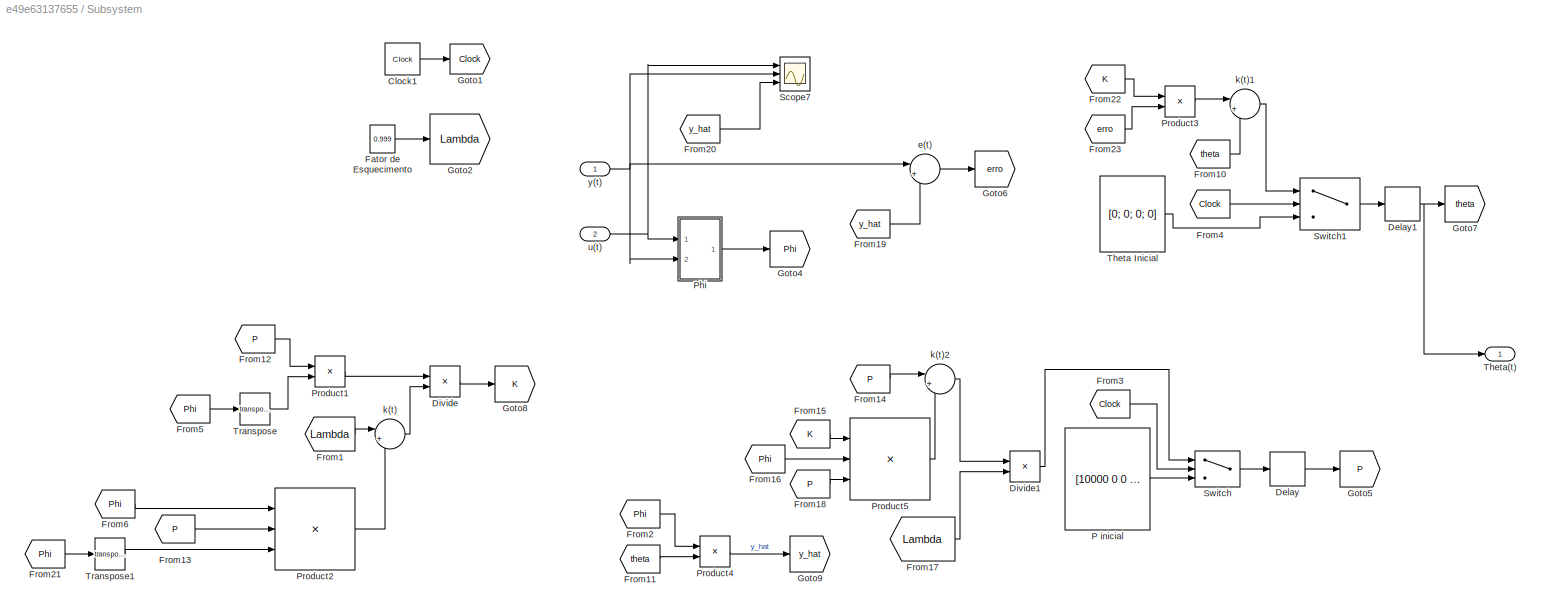
BLOCK [SubSystem] Subsystem
  Ports = [2, 1]
  RequestExecContextInheritance = off
BLOCK [Clock] Subsystem/Clock1
BLOCK [Delay] Subsystem/Delay
  DelayLength = 1
  InitialCondition = 0
  InputPortMap = u0
  Ports = [1, 1]
BLOCK [Delay] Subsystem/Delay1
  DelayLength = 1
  InitialCondition = 0
  InputPortMap = u0
  Ports = [1, 1]
BLOCK [Product] Subsystem/Divide
  InputSameDT = off
  Inputs = */
  OutDataTypeStr = Inherit: Inherit via internal rule
  Ports = [2, 1]
  RndMeth = Floor
  SaturateOnIntegerOverflow = off
BLOCK [Product] Subsystem/Divide1
  InputSameDT = off
  Inputs = */
  OutDataTypeStr = Inherit: Inherit via internal rule
  Ports = [2, 1]
  RndMeth = Floor
  SaturateOnIntegerOverflow = off
BLOCK [Constant] Subsystem/Fator de Esquecimento 
  Value = 0.999
BLOCK [From] Subsystem/From1
  GotoTag = Lambda
BLOCK [From] Subsystem/From10
  GotoTag = theta
BLOCK [From] Subsystem/From11
  GotoTag = theta
BLOCK [From] Subsystem/From12
  GotoTag = P
BLOCK [From] Subsystem/From13
  GotoTag = P
BLOCK [From] Subsystem/From14
  GotoTag = P
BLOCK [From] Subsystem/From15
  GotoTag = K
BLOCK [From] Subsystem/From16
  GotoTag = Phi
BLOCK [From] Subsystem/From17
  GotoTag = Lambda
BLOCK [From] Subsystem/From18
  GotoTag = P
BLOCK [From] Subsystem/From19
  GotoTag = y_hat
BLOCK [From] Subsystem/From2
  GotoTag = Phi
BLOCK [From] Subsystem/From20
  GotoTag = y_hat
BLOCK [From] Subsystem/From21
  GotoTag = Phi
BLOCK [From] Subsystem/From22
  GotoTag = K
BLOCK [From] Subsystem/From23
  GotoTag = erro
BLOCK [From] Subsystem/From3
  GotoTag = Clock
BLOCK [From] Subsystem/From4
  GotoTag = Clock
BLOCK [From] Subsystem/From5
  GotoTag = Phi
BLOCK [From] Subsystem/From6
  GotoTag = Phi
BLOCK [Goto] Subsystem/Goto1
  GotoTag = Clock
BLOCK [Goto] Subsystem/Goto2
  GotoTag = Lambda
BLOCK [Goto] Subsystem/Goto4
  GotoTag = Phi
BLOCK [Goto] Subsystem/Goto5
  GotoTag = P
BLOCK [Goto] Subsystem/Goto6
  GotoTag = erro
BLOCK [Goto] Subsystem/Goto7
  GotoTag = theta
BLOCK [Goto] Subsystem/Goto8
  GotoTag = K
BLOCK [Goto] Subsystem/Goto9
  GotoTag = y_hat
BLOCK [Constant] Subsystem/P inicial
  Value = [10000 0 0 0; 0 10000 0 0; 0 0 10000 0; 0 0 0 10000]
BLOCK [SubSystem] Subsystem/Phi
  Ports = [2, 1]
  RequestExecContextInheritance = off
BLOCK [Constant] Subsystem/Phi/Constant
  Value = -1
BLOCK [Delay] Subsystem/Phi/Delay
  InputPortMap = u0
  Ports = [1, 1]
BLOCK [Delay] Subsystem/Phi/Delay1
  DelayLength = 1
  InputPortMap = u0
  Ports = [1, 1]
BLOCK [Delay] Subsystem/Phi/Delay2
  InputPortMap = u0
  Ports = [1, 1]
BLOCK [Delay] Subsystem/Phi/Delay3
  DelayLength = 1
  InputPortMap = u0
  Ports = [1, 1]
BLOCK [Display] Subsystem/Phi/Display
  Decimation = 1
  Ports = [1]
BLOCK [Outport] Subsystem/Phi/Phi
  IconDisplay = Port number
BLOCK [Product] Subsystem/Phi/Product
  InputSameDT = off
  OutDataTypeStr = Inherit: Inherit via internal rule
  Ports = [2, 1]
  RndMeth = Floor
  SaturateOnIntegerOverflow = off
BLOCK [Math] Subsystem/Phi/Transpose1
  Operator = transpose
  Ports = [1, 1]
BLOCK [Concatenate] Subsystem/Phi/Vector Concatenate
  NumInputs = 4
  Ports = [4, 1]
BLOCK [Inport] Subsystem/Phi/u(t)
  IconDisplay = Port number
BLOCK [Inport] Subsystem/Phi/y(t)
  IconDisplay = Port number
  Port = 2
BLOCK [Product] Subsystem/Product1
  InputSameDT = off
  Multiplication = Matrix(*)
  OutDataTypeStr = Inherit: Inherit via internal rule
  Ports = [2, 1]
  RndMeth = Floor
  SaturateOnIntegerOverflow = off
BLOCK [Product] Subsystem/Product2
  InputSameDT = off
  Inputs = 3
  Multiplication = Matrix(*)
  OutDataTypeStr = Inherit: Inherit via internal rule
  Ports = [3, 1]
  RndMeth = Floor
  SaturateOnIntegerOverflow = off
BLOCK [Product] Subsystem/Product3
  InputSameDT = off
  Multiplication = Matrix(*)
  OutDataTypeStr = Inherit: Inherit via internal rule
  Ports = [2, 1]
  RndMeth = Floor
  SaturateOnIntegerOverflow = off
BLOCK [Product] Subsystem/Product4
  InputSameDT = off
  Multiplication = Matrix(*)
  OutDataTypeStr = Inherit: Inherit via internal rule
  Ports = [2, 1]
  RndMeth = Floor
  SaturateOnIntegerOverflow = off
BLOCK [Product] Subsystem/Product5
  InputSameDT = off
  Inputs = 3
  Multiplication = Matrix(*)
  OutDataTypeStr = Inherit: Inherit via internal rule
  Ports = [3, 1]
  RndMeth = Floor
  SaturateOnIntegerOverflow = off
BLOCK [Scope] Subsystem/Scope7
  Floating = off
  NumInputPorts = 3
  Ports = [3]
  ScopeSpecificationString = Simulink.scopes.TimeScopeBlockCfg('CurrentConfiguration', extmgr.ConfigurationSet(extmgr.Configuration('Core','General UI',true,'FigureColor',[0.156862745098039 0.156862745098039 0.156862745098039]),extmgr.Configuration('Core','Source UI',true),extmgr.Configuration('Sources','WiredSimulink',true,'DataLoggingVariableName','ScopeData1','DataLoggingSaveFormat','StructureWithTime','DataLoggingDecimati...<+3159ch>
BLOCK [Switch] Subsystem/Switch
  Criteria = u2 > Threshold
  InputSameDT = off
  SaturateOnIntegerOverflow = off
BLOCK [Switch] Subsystem/Switch1
  Criteria = u2 > Threshold
  InputSameDT = off
  SaturateOnIntegerOverflow = off
BLOCK [Constant] Subsystem/Theta Inicial 
  Value = [0; 0; 0; 0]
BLOCK [Outport] Subsystem/Theta(t) 
  IconDisplay = Port number
BLOCK [Math] Subsystem/Transpose
  Operator = transpose
  Ports = [1, 1]
BLOCK [Math] Subsystem/Transpose1
  Operator = transpose
  Ports = [1, 1]
BLOCK [Sum] Subsystem/e(t)
  IconShape = round
  InputSameDT = off
  Inputs = |+-
  OutDataTypeStr = Inherit: Inherit via internal rule
  Ports = [2, 1]
  SaturateOnIntegerOverflow = off
BLOCK [Sum] Subsystem/k(t)
  IconShape = round
  InputSameDT = off
  Inputs = |++
  OutDataTypeStr = Inherit: Inherit via internal rule
  Ports = [2, 1]
  SaturateOnIntegerOverflow = off
BLOCK [Sum] Subsystem/k(t)1
  IconShape = round
  InputSameDT = off
  Inputs = |++
  OutDataTypeStr = Inherit: Inherit via internal rule
  Ports = [2, 1]
  SaturateOnIntegerOverflow = off
BLOCK [Sum] Subsystem/k(t)2
  IconShape = round
  InputSameDT = off
  Inputs = |+-
  OutDataTypeStr = Inherit: Inherit via internal rule
  Ports = [2, 1]
  SaturateOnIntegerOverflow = off
BLOCK [Inport] Subsystem/u(t) 
  IconDisplay = Port number
  Port = 2
BLOCK [Inport] Subsystem/y(t)
  IconDisplay = Port number
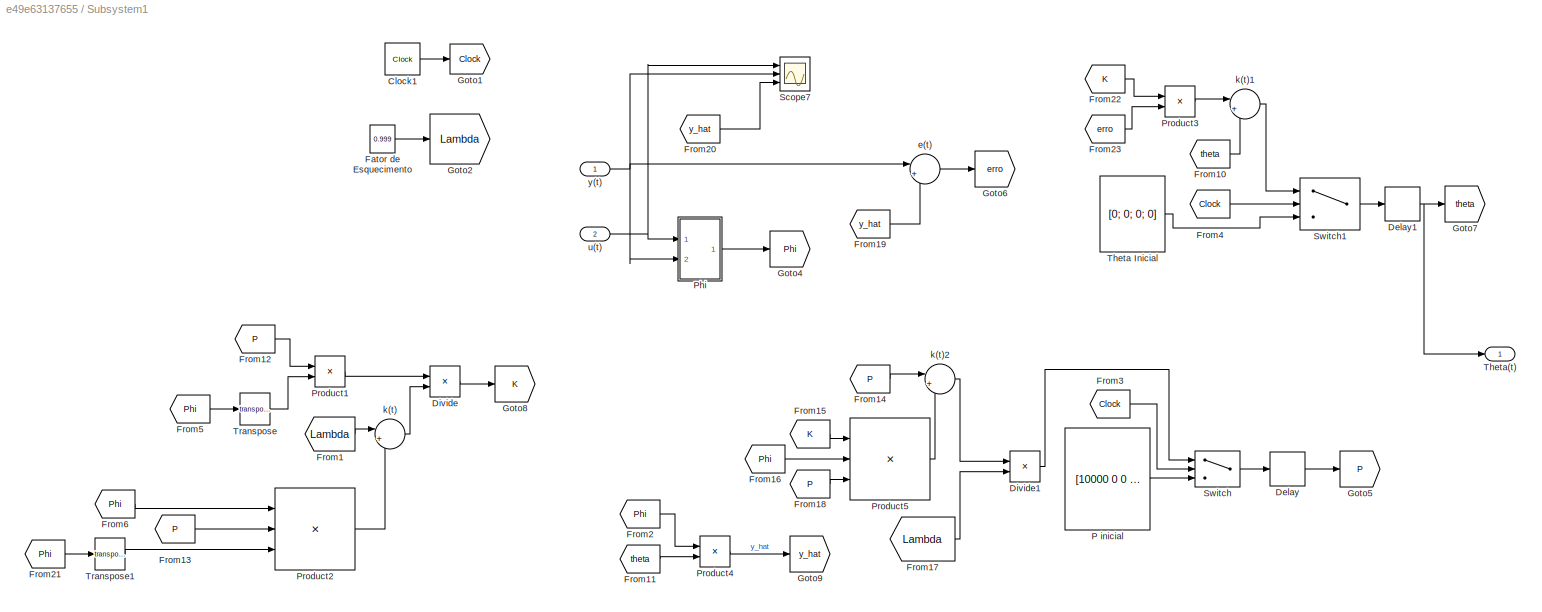
BLOCK [SubSystem] Subsystem1
  Commented = on
  Ports = [2, 1]
  RequestExecContextInheritance = off
BLOCK [Clock] Subsystem1/Clock1
BLOCK [Delay] Subsystem1/Delay
  DelayLength = 1
  InitialCondition = 0
  InputPortMap = u0
  Ports = [1, 1]
BLOCK [Delay] Subsystem1/Delay1
  DelayLength = 1
  InitialCondition = 0
  InputPortMap = u0
  Ports = [1, 1]
BLOCK [Product] Subsystem1/Divide
  InputSameDT = off
  Inputs = */
  OutDataTypeStr = Inherit: Inherit via internal rule
  Ports = [2, 1]
  RndMeth = Floor
  SaturateOnIntegerOverflow = off
BLOCK [Product] Subsystem1/Divide1
  InputSameDT = off
  Inputs = */
  OutDataTypeStr = Inherit: Inherit via internal rule
  Ports = [2, 1]
  RndMeth = Floor
  SaturateOnIntegerOverflow = off
BLOCK [Constant] Subsystem1/Fator de Esquecimento 
  Value = 0.999
BLOCK [From] Subsystem1/From1
  GotoTag = Lambda
BLOCK [From] Subsystem1/From10
  GotoTag = theta
BLOCK [From] Subsystem1/From11
  GotoTag = theta
BLOCK [From] Subsystem1/From12
  GotoTag = P
BLOCK [From] Subsystem1/From13
  GotoTag = P
BLOCK [From] Subsystem1/From14
  GotoTag = P
BLOCK [From] Subsystem1/From15
  GotoTag = K
BLOCK [From] Subsystem1/From16
  GotoTag = Phi
BLOCK [From] Subsystem1/From17
  GotoTag = Lambda
BLOCK [From] Subsystem1/From18
  GotoTag = P
BLOCK [From] Subsystem1/From19
  GotoTag = y_hat
BLOCK [From] Subsystem1/From2
  GotoTag = Phi
BLOCK [From] Subsystem1/From20
  GotoTag = y_hat
BLOCK [From] Subsystem1/From21
  GotoTag = Phi
BLOCK [From] Subsystem1/From22
  GotoTag = K
BLOCK [From] Subsystem1/From23
  GotoTag = erro
BLOCK [From] Subsystem1/From3
  GotoTag = Clock
BLOCK [From] Subsystem1/From4
  GotoTag = Clock
BLOCK [From] Subsystem1/From5
  GotoTag = Phi
BLOCK [From] Subsystem1/From6
  GotoTag = Phi
BLOCK [Goto] Subsystem1/Goto1
  GotoTag = Clock
BLOCK [Goto] Subsystem1/Goto2
  GotoTag = Lambda
BLOCK [Goto] Subsystem1/Goto4
  GotoTag = Phi
BLOCK [Goto] Subsystem1/Goto5
  GotoTag = P
BLOCK [Goto] Subsystem1/Goto6
  GotoTag = erro
BLOCK [Goto] Subsystem1/Goto7
  GotoTag = theta
BLOCK [Goto] Subsystem1/Goto8
  GotoTag = K
BLOCK [Goto] Subsystem1/Goto9
  GotoTag = y_hat
BLOCK [Constant] Subsystem1/P inicial
  Value = [10000 0 0 0; 0 10000 0 0; 0 0 10000 0; 0 0 0 10000]
BLOCK [SubSystem] Subsystem1/Phi
  Ports = [2, 1]
  RequestExecContextInheritance = off
BLOCK [Constant] Subsystem1/Phi/Constant
  Value = -1
BLOCK [Delay] Subsystem1/Phi/Delay
  InputPortMap = u0
  Ports = [1, 1]
BLOCK [Delay] Subsystem1/Phi/Delay1
  DelayLength = 1
  InputPortMap = u0
  Ports = [1, 1]
BLOCK [Delay] Subsystem1/Phi/Delay2
  InputPortMap = u0
  Ports = [1, 1]
BLOCK [Delay] Subsystem1/Phi/Delay3
  DelayLength = 1
  InputPortMap = u0
  Ports = [1, 1]
BLOCK [Display] Subsystem1/Phi/Display
  Decimation = 1
  Ports = [1]
BLOCK [Outport] Subsystem1/Phi/Phi
  IconDisplay = Port number
BLOCK [Product] Subsystem1/Phi/Product
  InputSameDT = off
  OutDataTypeStr = Inherit: Inherit via internal rule
  Ports = [2, 1]
  RndMeth = Floor
  SaturateOnIntegerOverflow = off
BLOCK [Math] Subsystem1/Phi/Transpose1
  Operator = transpose
  Ports = [1, 1]
BLOCK [Concatenate] Subsystem1/Phi/Vector Concatenate
  NumInputs = 4
  Ports = [4, 1]
BLOCK [Inport] Subsystem1/Phi/u(t)
  IconDisplay = Port number
BLOCK [Inport] Subsystem1/Phi/y(t)
  IconDisplay = Port number
  Port = 2
BLOCK [Product] Subsystem1/Product1
  InputSameDT = off
  Multiplication = Matrix(*)
  OutDataTypeStr = Inherit: Inherit via internal rule
  Ports = [2, 1]
  RndMeth = Floor
  SaturateOnIntegerOverflow = off
BLOCK [Product] Subsystem1/Product2
  InputSameDT = off
  Inputs = 3
  Multiplication = Matrix(*)
  OutDataTypeStr = Inherit: Inherit via internal rule
  Ports = [3, 1]
  RndMeth = Floor
  SaturateOnIntegerOverflow = off
BLOCK [Product] Subsystem1/Product3
  InputSameDT = off
  Multiplication = Matrix(*)
  OutDataTypeStr = Inherit: Inherit via internal rule
  Ports = [2, 1]
  RndMeth = Floor
  SaturateOnIntegerOverflow = off
BLOCK [Product] Subsystem1/Product4
  InputSameDT = off
  Multiplication = Matrix(*)
  OutDataTypeStr = Inherit: Inherit via internal rule
  Ports = [2, 1]
  RndMeth = Floor
  SaturateOnIntegerOverflow = off
BLOCK [Product] Subsystem1/Product5
  InputSameDT = off
  Inputs = 3
  Multiplication = Matrix(*)
  OutDataTypeStr = Inherit: Inherit via internal rule
  Ports = [3, 1]
  RndMeth = Floor
  SaturateOnIntegerOverflow = off
BLOCK [Scope] Subsystem1/Scope7
  Floating = off
  NumInputPorts = 3
  Ports = [3]
  ScopeSpecificationString = Simulink.scopes.TimeScopeBlockCfg('CurrentConfiguration', extmgr.ConfigurationSet(extmgr.Configuration('Core','General UI',true,'FigureColor',[0.156862745098039 0.156862745098039 0.156862745098039]),extmgr.Configuration('Core','Source UI',true),extmgr.Configuration('Sources','WiredSimulink',true,'DataLoggingVariableName','ScopeData1','DataLoggingSaveFormat','StructureWithTime','DataLoggingDecimati...<+3159ch>
BLOCK [Switch] Subsystem1/Switch
  Criteria = u2 > Threshold
  InputSameDT = off
  SaturateOnIntegerOverflow = off
BLOCK [Switch] Subsystem1/Switch1
  Criteria = u2 > Threshold
  InputSameDT = off
  SaturateOnIntegerOverflow = off
BLOCK [Constant] Subsystem1/Theta Inicial 
  Value = [0; 0; 0; 0]
BLOCK [Outport] Subsystem1/Theta(t) 
  IconDisplay = Port number
BLOCK [Math] Subsystem1/Transpose
  Operator = transpose
  Ports = [1, 1]
BLOCK [Math] Subsystem1/Transpose1
  Operator = transpose
  Ports = [1, 1]
BLOCK [Sum] Subsystem1/e(t)
  IconShape = round
  InputSameDT = off
  Inputs = |+-
  OutDataTypeStr = Inherit: Inherit via internal rule
  Ports = [2, 1]
  SaturateOnIntegerOverflow = off
BLOCK [Sum] Subsystem1/k(t)
  IconShape = round
  InputSameDT = off
  Inputs = |++
  OutDataTypeStr = Inherit: Inherit via internal rule
  Ports = [2, 1]
  SaturateOnIntegerOverflow = off
BLOCK [Sum] Subsystem1/k(t)1
  IconShape = round
  InputSameDT = off
  Inputs = |++
  OutDataTypeStr = Inherit: Inherit via internal rule
  Ports = [2, 1]
  SaturateOnIntegerOverflow = off
BLOCK [Sum] Subsystem1/k(t)2
  IconShape = round
  InputSameDT = off
  Inputs = |+-
  OutDataTypeStr = Inherit: Inherit via internal rule
  Ports = [2, 1]
  SaturateOnIntegerOverflow = off
BLOCK [Inport] Subsystem1/u(t) 
  IconDisplay = Port number
  Port = 2
BLOCK [Inport] Subsystem1/y(t)
  IconDisplay = Port number
BLOCK [Sum] Sum1
  Commented = on
  IconShape = round
  InputSameDT = off
  Inputs = |++-+
  OutDataTypeStr = Inherit: Inherit via internal rule
  Ports = [4, 1]
  SaturateOnIntegerOverflow = off
BLOCK [Sum] Sum10
  IconShape = round
  InputSameDT = off
  Inputs = |++-+
  OutDataTypeStr = Inherit: Inherit via internal rule
  Ports = [4, 1]
  SaturateOnIntegerOverflow = off
BLOCK [Sum] Sum11
  IconShape = round
  InputSameDT = off
  Inputs = |+-
  OutDataTypeStr = Inherit: Inherit via internal rule
  Ports = [2, 1]
  SaturateOnIntegerOverflow = off
BLOCK [Sum] Sum12
  IconShape = round
  InputSameDT = off
  Inputs = |++
  OutDataTypeStr = Inherit: Inherit via internal rule
  Ports = [2, 1]
  SaturateOnIntegerOverflow = off
BLOCK [Sum] Sum13
  Commented = on
  IconShape = round
  InputSameDT = off
  Inputs = ++++
  OutDataTypeStr = Inherit: Inherit via internal rule
  Ports = [4, 1]
  SaturateOnIntegerOverflow = off
BLOCK [Sum] Sum2
  Commented = on
  IconShape = round
  InputSameDT = off
  Inputs = |++-+
  OutDataTypeStr = Inherit: Inherit via internal rule
  Ports = [4, 1]
  SaturateOnIntegerOverflow = off
BLOCK [Sum] Sum3
  Commented = on
  IconShape = round
  InputSameDT = off
  Inputs = |+-
  OutDataTypeStr = Inherit: Inherit via internal rule
  Ports = [2, 1]
  SaturateOnIntegerOverflow = off
BLOCK [Sum] Sum4
  Commented = on
  IconShape = round
  InputSameDT = off
  Inputs = ++++
  OutDataTypeStr = Inherit: Inherit via internal rule
  Ports = [4, 1]
  SaturateOnIntegerOverflow = off
BLOCK [Sum] Sum5
  Commented = on
  IconShape = round
  InputSameDT = off
  Inputs = |+-
  OutDataTypeStr = Inherit: Inherit via internal rule
  Ports = [2, 1]
  SaturateOnIntegerOverflow = off
BLOCK [Sum] Sum6
  Commented = on
  IconShape = round
  InputSameDT = off
  Inputs = |+-
  OutDataTypeStr = Inherit: Inherit via internal rule
  Ports = [2, 1]
  SaturateOnIntegerOverflow = off
BLOCK [Sum] Sum7
  IconShape = round
  InputSameDT = off
  Inputs = |+-+-+-+-+-+-
  OutDataTypeStr = Inherit: Inherit via internal rule
  Ports = [12, 1]
  SaturateOnIntegerOverflow = off
BLOCK [Sum] Sum8
  IconShape = round
  InputSameDT = off
  Inputs = ++++
  OutDataTypeStr = Inherit: Inherit via internal rule
  Ports = [4, 1]
  SaturateOnIntegerOverflow = off
BLOCK [Sum] Sum9
  IconShape = round
  InputSameDT = off
  Inputs = |++++
  OutDataTypeStr = Inherit: Inherit via internal rule
  Ports = [4, 1]
  SaturateOnIntegerOverflow = off
BLOCK [Switch] Switch1
  Commented = on
  Criteria = u2 > Threshold
  InputSameDT = off
  SaturateOnIntegerOverflow = off
  Threshold = tc
BLOCK [Switch] Switch2
  Commented = on
  Criteria = u2 > Threshold
  InputSameDT = off
  SaturateOnIntegerOverflow = off
  Threshold = tc
BLOCK [Switch] Switch3
  Commented = on
  Criteria = u2 > Threshold
  InputSameDT = off
  SaturateOnIntegerOverflow = off
  Threshold = tc
BLOCK [Switch] Switch6
  Criteria = u2 > Threshold
  InputSameDT = off
  SaturateOnIntegerOverflow = off
  Threshold = 50
BLOCK [Switch] Switch7
  Criteria = u2 > Threshold
  InputSameDT = off
  SaturateOnIntegerOverflow = off
  Threshold = 50
BLOCK [Switch] Switch8
  Criteria = u2 > Threshold
  InputSameDT = off
  SaturateOnIntegerOverflow = off
  Threshold = 50
BLOCK [Display] T
  Decimation = 1
  Ports = [1]
BLOCK [Display] T 
  Commented = on
  Decimation = 1
  Ports = [1]
BLOCK [Display] T 1
  Commented = on
  Decimation = 1
  Ports = [1]
BLOCK [Constant] T inicial1
  Commented = on
  Value = T
BLOCK [Constant] T inicial2
  Value = T
BLOCK [Constant] T inicial3
  Commented = on
  Value = T
BLOCK [DiscreteFilter] T1
  Commented = on
  Denominator = 1
  InputPortMap = u0,p1
  Numerator = 13.39
  NumeratorSource = Input port
  Ports = [2, 1]
BLOCK [DiscreteFilter] T2
  Commented = on
  Denominator = 1
  InputPortMap = u0,p1
  Numerator = 13.39
  NumeratorSource = Input port
  Ports = [2, 1]
BLOCK [DiscreteFilter] T3
  Denominator = 1
  InputPortMap = u0,p1
  Numerator = 13.39
  NumeratorSource = Input port
  Ports = [2, 1]
BLOCK [Display] T4
  Decimation = 1
  Ports = [1]
BLOCK [DiscreteFilter] T5
  Commented = on
  Denominator = 1
  InputPortMap = u0,p1
  Numerator = 13.39
  NumeratorSource = Input port
  Ports = [2, 1]
BLOCK [Display] T6
  Decimation = 1
  Ports = [1]
BLOCK [Constant] Ts
  Commented = on
  Value = Ts
BLOCK [Constant] Ts1
  Commented = on
  Value = Ts
BLOCK [Constant] Ts3
  Value = Ts
BLOCK [UniformRandomNumber] Uniform Random Number1
  Commented = on
  Maximum = 0.1
  Minimum = -0.1
  SampleTime = 0
BLOCK [UniformRandomNumber] Uniform Random Number2
  Maximum = 0.1
  Minimum = -0.1
  SampleTime = 0
BLOCK [UniformRandomNumber] Uniform Random Number3
  Commented = on
  Maximum = 0.1
  Minimum = -0.1
  SampleTime = 0
ANNOTATION (root): Parâmetros do controlador são inicializados com valores constantes para que haja o processo de identificação. Logo após, são fornecidos os parâmetros do controlador correspondente ao modelo da planta.
ANNOTATION RST1: Theta Inicializado com um valor qualquer até que ocorra o processo de identificação da planta.
ANNOTATION RST3: Theta Inicializado com um valor qualquer até que ocorra o processo de identificação da planta.
LINE 1//S1:1 -> Discrete Filter1:1
LINE 1//S2:1 -> Discrete Filter4:1
NET 1//S3:1 -> Discrete Filter3:1, Scope9:1, Subsystem:2
NET 1//S4:1 -> Discrete Filter5:1, Scope6:1, Subsystem1:2
LINE Clock2:1 -> Goto3:1
LINE Damping1:1 -> RST1:3
LINE Damping3:1 -> RST3:3
LINE Damping:1 -> RST:3
NET Discrete Filter1:1 -> R1:1, Scope1:2
LINE Discrete Filter2:1 -> Sum4:2
LINE Discrete Filter3:1 -> Sum8:2
NET Discrete Filter4:1 -> R2:1, Scope4:2
LINE Discrete Filter5:1 -> Sum13:2
LINE Frequência:1 -> RST1:5
LINE From1:1 -> Switch2:2
LINE From2:1 -> Switch3:2
LINE From3:1 -> Switch1:2
LINE From7:1 -> Switch7:2
LINE From8:1 -> Switch8:2
LINE From9:1 -> Switch6:2
NET R inicial 1:1 -> R2:2, R2S1:1
NET R inicial 2:1 -> RR1:1, Switch8:3
LINE R inicial 3:1 -> Switch3:3
LINE R1:1 -> Sum3:2
LINE R2:1 -> Sum5:2
LINE R3:1 -> Sum11:2
LINE R4:1 -> Sum6:2
LINE RST/1:1 -> RST/Sum Am:1
LINE RST/2:1 -> RST/Matrix Concatenate:1
LINE RST/B:1 -> RST/Sum B:1
LINE RST/Damping:1 -> RST/Poles:3
NET RST/Demux:1 -> RST/Display5:1, RST/Matrix Concatenate:2
NET RST/Demux:2 -> RST/Display6:1, RST/Matrix Concatenate1:2
NET RST/Demux:3 -> RST/Display7:1, RST/Matrix Concatenate1:1
NET RST/Divide:1 -> RST/Display2:1, RST/T:1
NET RST/Invert 3x3 Matrix:1 -> RST/Display:1, RST/Matrix Multiply:1
NET RST/Matrix Concatenate1:1 -> RST/Display9:1, RST/R:1
NET RST/Matrix Concatenate:1 -> RST/Display8:1, RST/S:1
LINE RST/Matrix M/ 0:1 -> RST/Matrix M/Matrix Concatenate5:2
LINE RST/Matrix M/ :1 -> RST/Matrix M/Matrix Concatenate:2
LINE RST/Matrix M/ B(2):1 -> RST/Matrix M/Matrix Concatenate2:2
LINE RST/Matrix M/ B(3):1 -> RST/Matrix M/Matrix Concatenate4:2
LINE RST/Matrix M/ B2:1 -> RST/Matrix M/Matrix Concatenate1:2
LINE RST/Matrix M/ B3:1 -> RST/Matrix M/Matrix Concatenate3:2
LINE RST/Matrix M/1:1 -> RST/Matrix M/Matrix Concatenate:1
LINE RST/Matrix M/A2:1 -> RST/Matrix M/Matrix Concatenate2:1
LINE RST/Matrix M/A3:1 -> RST/Matrix M/Matrix Concatenate4:1
LINE RST/Matrix M/Matrix Concatenate1:1 -> RST/Matrix M/Matrix Concatenate6:1
LINE RST/Matrix M/Matrix Concatenate2:1 -> RST/Matrix M/Matrix Concatenate3:1
LINE RST/Matrix M/Matrix Concatenate3:1 -> RST/Matrix M/Matrix Concatenate6:2
LINE RST/Matrix M/Matrix Concatenate4:1 -> RST/Matrix M/Matrix Concatenate5:1
LINE RST/Matrix M/Matrix Concatenate5:1 -> RST/Matrix M/Matrix Concatenate7:2
LINE RST/Matrix M/Matrix Concatenate6:1 -> RST/Matrix M/Matrix Concatenate7:1
NET RST/Matrix M/Matrix Concatenate7:1 -> RST/Matrix M/Display:1, RST/Matrix M/M:1
LINE RST/Matrix M/Matrix Concatenate:1 -> RST/Matrix M/Matrix Concatenate1:1
LINE RST/Matrix M:1 -> RST/Invert 3x3 Matrix:1
NET RST/Matrix Multiply:1 -> RST/Demux:1, RST/Display1:1
LINE RST/Matrix Q/0:1 -> RST/Matrix Q/Matrix Concatenate1:2
LINE RST/Matrix Q/A2:1 -> RST/Matrix Q/Subtract:2
LINE RST/Matrix Q/A3:1 -> RST/Matrix Q/Subtract1:2
NET RST/Matrix Q/Matrix Concatenate1:1 -> RST/Matrix Q/Display:1, RST/Matrix Q/Q:1
LINE RST/Matrix Q/Matrix Concatenate:1 -> RST/Matrix Q/Matrix Concatenate1:1
LINE RST/Matrix Q/P1:1 -> RST/Matrix Q/Subtract:1
LINE RST/Matrix Q/P2:1 -> RST/Matrix Q/Subtract1:1
LINE RST/Matrix Q/Subtract1:1 -> RST/Matrix Q/Matrix Concatenate:2
LINE RST/Matrix Q/Subtract:1 -> RST/Matrix Q/Matrix Concatenate:1
LINE RST/Matrix Q:1 -> RST/Matrix Multiply:2
LINE RST/Poles/ :1 -> RST/Poles/Dot Product3:1
LINE RST/Poles/1:1 -> RST/Poles/Subtract:1
LINE RST/Poles/Constant1:1 -> RST/Poles/Dot Product1:1
LINE RST/Poles/Constant2:1 -> RST/Poles/Math Function1:2
LINE RST/Poles/Constant3:1 -> RST/Poles/Dot Product8:1
LINE RST/Poles/Constant:1 -> RST/Poles/Divide:1
NET RST/Poles/Damping:1 -> RST/Poles/Dot Product3:2, RST/Poles/Dot Product:2, RST/Poles/Math Function1:1
NET RST/Poles/Divide:1 -> RST/Poles/Dot Product2:1, RST/Poles/Goto:1
LINE RST/Poles/Dot Product1:1 -> RST/Poles/Dot Product5:1
LINE RST/Poles/Dot Product2:1 -> RST/Poles/Dot Product4:2
LINE RST/Poles/Dot Product3:1 -> RST/Poles/Dot Product2:2
NET RST/Poles/Dot Product4:1 -> RST/Poles/Dot Product8:2, RST/Poles/Math Function:1
NET RST/Poles/Dot Product5:1 -> RST/Poles/Display3:1, RST/Poles/P1:1
LINE RST/Poles/Dot Product6:1 -> RST/Poles/Trigonometric Function1:1
LINE RST/Poles/Dot Product7:1 -> RST/Poles/Dot Product6:1
LINE RST/Poles/Dot Product8:1 -> RST/Poles/Math Function2:1
LINE RST/Poles/Dot Product:1 -> RST/Poles/Divide:2
LINE RST/Poles/From1:1 -> RST/Poles/Dot Product7:2
LINE RST/Poles/From:1 -> RST/Poles/Dot Product7:1
LINE RST/Poles/Math Function1:1 -> RST/Poles/Subtract:2
NET RST/Poles/Math Function2:1 -> RST/Poles/Display1:1, RST/Poles/P2:1
LINE RST/Poles/Math Function:1 -> RST/Poles/Dot Product1:2
NET RST/Poles/Sample Time:1 -> RST/Poles/Dot Product4:1, RST/Poles/Goto1:1
LINE RST/Poles/Sqrt:1 -> RST/Poles/Dot Product6:2
LINE RST/Poles/Subtract:1 -> RST/Poles/Sqrt:1
LINE RST/Poles/Trigonometric Function1:1 -> RST/Poles/Dot Product5:2
LINE RST/Poles/Ts:1 -> RST/Poles/Dot Product:1
NET RST/Poles:1 -> RST/Matrix Q:1, RST/Sum Am:2
NET RST/Poles:2 -> RST/Matrix Q:2, RST/Sum Am:3
LINE RST/Sample Time:1 -> RST/Poles:1
NET RST/Sum Am:1 -> RST/Display3:1, RST/Divide:1
NET RST/Sum B:1 -> RST/Display4:1, RST/Divide:2
LINE RST/Ts:1 -> RST/Poles:2
LINE RST1/ LU Inverse1:1 -> RST1/Matrix Multiply1:1
NET RST1/ LU Inverse:1 -> RST1/Display:1, RST1/Matrix Multiply:1
LINE RST1/Clock:1 -> RST1/Goto:1
LINE RST1/Coeficientes de P/ :1 -> RST1/Coeficientes de P/Dot Product3:1
LINE RST1/Coeficientes de P/1:1 -> RST1/Coeficientes de P/Subtract:1
LINE RST1/Coeficientes de P/Constant1:1 -> RST1/Coeficientes de P/Dot Product1:1
LINE RST1/Coeficientes de P/Constant2:1 -> RST1/Coeficientes de P/Math Function1:2
LINE RST1/Coeficientes de P/Constant3:1 -> RST1/Coeficientes de P/Dot Product8:1
LINE RST1/Coeficientes de P/Constant:1 -> RST1/Coeficientes de P/Divide:1
NET RST1/Coeficientes de P/Damping:1 -> RST1/Coeficientes de P/Dot Product3:2, RST1/Coeficientes de P/Dot Product:2, RST1/Coeficientes de P/Math Function1:1
NET RST1/Coeficientes de P/Divide:1 -> RST1/Coeficientes de P/Dot Product2:1, RST1/Coeficientes de P/Goto:1
LINE RST1/Coeficientes de P/Dot Product1:1 -> RST1/Coeficientes de P/Dot Product5:1
LINE RST1/Coeficientes de P/Dot Product2:1 -> RST1/Coeficientes de P/Dot Product4:2
LINE RST1/Coeficientes de P/Dot Product3:1 -> RST1/Coeficientes de P/Dot Product2:2
NET RST1/Coeficientes de P/Dot Product4:1 -> RST1/Coeficientes de P/Dot Product8:2, RST1/Coeficientes de P/Math Function:1
NET RST1/Coeficientes de P/Dot Product5:1 -> RST1/Coeficientes de P/Display3:1, RST1/Coeficientes de P/P1:1
LINE RST1/Coeficientes de P/Dot Product6:1 -> RST1/Coeficientes de P/Trigonometric Function1:1
LINE RST1/Coeficientes de P/Dot Product7:1 -> RST1/Coeficientes de P/Dot Product6:1
LINE RST1/Coeficientes de P/Dot Product8:1 -> RST1/Coeficientes de P/Math Function2:1
LINE RST1/Coeficientes de P/Dot Product:1 -> RST1/Coeficientes de P/Divide:2
LINE RST1/Coeficientes de P/From1:1 -> RST1/Coeficientes de P/Dot Product7:2
LINE RST1/Coeficientes de P/From:1 -> RST1/Coeficientes de P/Dot Product7:1
LINE RST1/Coeficientes de P/Math Function1:1 -> RST1/Coeficientes de P/Subtract:2
NET RST1/Coeficientes de P/Math Function2:1 -> RST1/Coeficientes de P/Display1:1, RST1/Coeficientes de P/P2:1
LINE RST1/Coeficientes de P/Math Function:1 -> RST1/Coeficientes de P/Dot Product1:2
NET RST1/Coeficientes de P/Sample Time:1 -> RST1/Coeficientes de P/Dot Product4:1, RST1/Coeficientes de P/Goto1:1
LINE RST1/Coeficientes de P/Sqrt:1 -> RST1/Coeficientes de P/Dot Product6:2
LINE RST1/Coeficientes de P/Subtract:1 -> RST1/Coeficientes de P/Sqrt:1
LINE RST1/Coeficientes de P/Trigonometric Function1:1 -> RST1/Coeficientes de P/Dot Product5:2
LINE RST1/Coeficientes de P/Ts:1 -> RST1/Coeficientes de P/Dot Product:1
LINE RST1/Coeficientes de P:1 -> RST1/Matrix Q:1
LINE RST1/Coeficientes de P:2 -> RST1/Matrix Q:2
LINE RST1/Damping:1 -> RST1/Coeficientes de P:3
LINE RST1/Demux1:1 -> RST1/Mux3:1
LINE RST1/Demux1:2 -> RST1/Mux3:2
LINE RST1/Demux1:3 -> RST1/Mux2:1
LINE RST1/Demux1:4 -> RST1/Mux2:2
LINE RST1/Demux:1 -> RST1/Mux1:1
LINE RST1/Demux:2 -> RST1/Mux1:2
LINE RST1/Demux:3 -> RST1/Mux:1
LINE RST1/Demux:4 -> RST1/Mux:2
LINE RST1/From:1 -> RST1/Switch1:2
NET RST1/Matrix M/ 1:1 -> RST1/Matrix M/Matrix Concatenate11:1, RST1/Matrix M/Matrix Concatenate11:3, RST1/Matrix M/Matrix Concatenate6:2, RST1/Matrix M/Matrix Concatenate6:3, RST1/Matrix M/Matrix Concatenate6:4, RST1/Matrix M/Matrix Concatenate9:4
NET RST1/Matrix M/2:1 -> RST1/Matrix M/Matrix Concatenate6:1, RST1/Matrix M/Matrix Concatenate9:2
NET RST1/Matrix M/Demux:1 -> RST1/Matrix M/Matrix Concatenate10:2, RST1/Matrix M/Matrix Concatenate9:1
NET RST1/Matrix M/Demux:2 -> RST1/Matrix M/Matrix Concatenate10:1, RST1/Matrix M/Matrix Concatenate11:2
NET RST1/Matrix M/Demux:3 -> RST1/Matrix M/Matrix Concatenate10:4, RST1/Matrix M/Matrix Concatenate9:3
NET RST1/Matrix M/Demux:4 -> RST1/Matrix M/Matrix Concatenate10:3, RST1/Matrix M/Matrix Concatenate11:4
LINE RST1/Matrix M/In1:1 -> RST1/Matrix M/Demux:1
LINE RST1/Matrix M/Matrix Concatenate10:1 -> RST1/Matrix M/Matrix Concatenate13:1
LINE RST1/Matrix M/Matrix Concatenate11:1 -> RST1/Matrix M/Matrix Concatenate13:2
LINE RST1/Matrix M/Matrix Concatenate12:1 -> RST1/Matrix M/Matrix Concatenate14:1
LINE RST1/Matrix M/Matrix Concatenate13:1 -> RST1/Matrix M/Matrix Concatenate14:2
NET RST1/Matrix M/Matrix Concatenate14:1 -> RST1/Matrix M/Display1:1, RST1/Matrix M/M:1
LINE RST1/Matrix M/Matrix Concatenate6:1 -> RST1/Matrix M/Matrix Concatenate12:1
LINE RST1/Matrix M/Matrix Concatenate9:1 -> RST1/Matrix M/Matrix Concatenate12:2
LINE RST1/Matrix M:1 -> RST1/ LU Inverse:1
NET RST1/Matrix Multiply1:1 -> RST1/Demux1:1, RST1/Display2:1
NET RST1/Matrix Multiply:1 -> RST1/Demux:1, RST1/Display1:1
LINE RST1/Matrix Q/Constant1:1 -> RST1/Matrix Q/Matrix Concatenate3:2
LINE RST1/Matrix Q/Constant:1 -> RST1/Matrix Q/Matrix Concatenate1:1
LINE RST1/Matrix Q/Matrix Concatenate1:1 -> RST1/Matrix Q/Matrix Concatenate2:1
NET RST1/Matrix Q/Matrix Concatenate2:1 -> RST1/Matrix Q/Display1:1, RST1/Matrix Q/Q1:1
LINE RST1/Matrix Q/Matrix Concatenate3:1 -> RST1/Matrix Q/Matrix Concatenate2:2
LINE RST1/Matrix Q/P1:1 -> RST1/Matrix Q/Matrix Concatenate1:2
LINE RST1/Matrix Q/P2:1 -> RST1/Matrix Q/Matrix Concatenate3:1
NET RST1/Matrix Q:1 -> RST1/Matrix Multiply1:2, RST1/Matrix Multiply:2
NET RST1/Mux1:1 -> RST1/Display9:1, RST1/S:1
NET RST1/Mux2:1 -> RST1/Display3:1, RST1/T:1
NET RST1/Mux3:1 -> RST1/Display4:1, RST1/L:1
NET RST1/Mux:1 -> RST1/Display8:1, RST1/R:1
LINE RST1/Sample Time:1 -> RST1/Coeficientes de P:1
NET RST1/Subsystem/Constant1:1 -> RST1/Subsystem/Matrix Concatenate4:1, RST1/Subsystem/Matrix Concatenate6:2
NET RST1/Subsystem/Constant3:1 -> RST1/Subsystem/Matrix Concatenate2:1, RST1/Subsystem/Matrix Concatenate2:3, RST1/Subsystem/Matrix Concatenate4:2, RST1/Subsystem/Matrix Concatenate4:3, RST1/Subsystem/Matrix Concatenate4:4, RST1/Subsystem/Matrix Concatenate6:4
NET RST1/Subsystem/Constant4:1 -> RST1/Subsystem/Matrix Concatenate2:2, RST1/Subsystem/Matrix Concatenate5:1
LINE RST1/Subsystem/Constant:1 -> RST1/Subsystem/Dot Product1:1
LINE RST1/Subsystem/Cos:1 -> RST1/Subsystem/Dot Product1:2
LINE RST1/Subsystem/Demux1:1 -> RST1/Subsystem/Display:1
LINE RST1/Subsystem/Demux1:2 -> RST1/Subsystem/Display2:1
NET RST1/Subsystem/Demux1:3 -> RST1/Subsystem/Matrix Concatenate5:4, RST1/Subsystem/Matrix Concatenate6:3
NET RST1/Subsystem/Demux1:4 -> RST1/Subsystem/Matrix Concatenate2:4, RST1/Subsystem/Matrix Concatenate5:3
NET RST1/Subsystem/Dot Product1:1 -> RST1/Subsystem/Matrix Concatenate5:2, RST1/Subsystem/Matrix Concatenate6:1
LINE RST1/Subsystem/Dot Product:1 -> RST1/Subsystem/Cos:1
LINE RST1/Subsystem/Matrix Concatenate12:1 -> RST1/Subsystem/Matrix Concatenate14:1
LINE RST1/Subsystem/Matrix Concatenate13:1 -> RST1/Subsystem/Matrix Concatenate14:2
NET RST1/Subsystem/Matrix Concatenate14:1 -> RST1/Subsystem/Display1:1, RST1/Subsystem/M2:1
LINE RST1/Subsystem/Matrix Concatenate2:1 -> RST1/Subsystem/Matrix Concatenate13:2
LINE RST1/Subsystem/Matrix Concatenate4:1 -> RST1/Subsystem/Matrix Concatenate12:1
LINE RST1/Subsystem/Matrix Concatenate5:1 -> RST1/Subsystem/Matrix Concatenate13:1
LINE RST1/Subsystem/Matrix Concatenate6:1 -> RST1/Subsystem/Matrix Concatenate12:2
LINE RST1/Subsystem/Tas:1 -> RST1/Subsystem/Dot Product:2
LINE RST1/Subsystem/Theta:1 -> RST1/Subsystem/Demux1:1
LINE RST1/Subsystem/w0:1 -> RST1/Subsystem/Dot Product:1
LINE RST1/Subsystem:1 -> RST1/ LU Inverse1:1
NET RST1/Switch1:1 -> RST1/Matrix M:1, RST1/Subsystem:1
LINE RST1/Tas:1 -> RST1/Subsystem:3
LINE RST1/Theta Inicial:1 -> RST1/Switch1:3
LINE RST1/Theta:1 -> RST1/Switch1:1
LINE RST1/Ts:1 -> RST1/Coeficientes de P:2
LINE RST1/w0:1 -> RST1/Subsystem:2
LINE RST1:1 -> Switch3:1
LINE RST1:2 -> Switch2:1
LINE RST1:3 -> Switch1:1
LINE RST3/ :1 -> RST3/Switch:3
NET RST3/ LU Inverse:1 -> RST3/Display:1, RST3/Matrix Multiply:1
LINE RST3/1:1 -> RST3/Sum Am:1
LINE RST3/Clock:1 -> RST3/Goto:1
LINE RST3/Coeficientes de P/ :1 -> RST3/Coeficientes de P/Dot Product3:1
LINE RST3/Coeficientes de P/1:1 -> RST3/Coeficientes de P/Subtract:1
LINE RST3/Coeficientes de P/Constant1:1 -> RST3/Coeficientes de P/Dot Product1:1
LINE RST3/Coeficientes de P/Constant2:1 -> RST3/Coeficientes de P/Math Function1:2
LINE RST3/Coeficientes de P/Constant3:1 -> RST3/Coeficientes de P/Dot Product8:1
LINE RST3/Coeficientes de P/Constant:1 -> RST3/Coeficientes de P/Divide:1
NET RST3/Coeficientes de P/Damping:1 -> RST3/Coeficientes de P/Dot Product3:2, RST3/Coeficientes de P/Dot Product:2, RST3/Coeficientes de P/Math Function1:1
NET RST3/Coeficientes de P/Divide:1 -> RST3/Coeficientes de P/Dot Product2:1, RST3/Coeficientes de P/Goto:1
LINE RST3/Coeficientes de P/Dot Product1:1 -> RST3/Coeficientes de P/Dot Product5:1
LINE RST3/Coeficientes de P/Dot Product2:1 -> RST3/Coeficientes de P/Dot Product4:2
LINE RST3/Coeficientes de P/Dot Product3:1 -> RST3/Coeficientes de P/Dot Product2:2
NET RST3/Coeficientes de P/Dot Product4:1 -> RST3/Coeficientes de P/Dot Product8:2, RST3/Coeficientes de P/Math Function:1
NET RST3/Coeficientes de P/Dot Product5:1 -> RST3/Coeficientes de P/Display3:1, RST3/Coeficientes de P/P1:1
LINE RST3/Coeficientes de P/Dot Product6:1 -> RST3/Coeficientes de P/Trigonometric Function1:1
LINE RST3/Coeficientes de P/Dot Product7:1 -> RST3/Coeficientes de P/Dot Product6:1
LINE RST3/Coeficientes de P/Dot Product8:1 -> RST3/Coeficientes de P/Math Function2:1
LINE RST3/Coeficientes de P/Dot Product:1 -> RST3/Coeficientes de P/Divide:2
LINE RST3/Coeficientes de P/From1:1 -> RST3/Coeficientes de P/Dot Product7:2
LINE RST3/Coeficientes de P/From:1 -> RST3/Coeficientes de P/Dot Product7:1
LINE RST3/Coeficientes de P/Math Function1:1 -> RST3/Coeficientes de P/Subtract:2
NET RST3/Coeficientes de P/Math Function2:1 -> RST3/Coeficientes de P/Display1:1, RST3/Coeficientes de P/P2:1
LINE RST3/Coeficientes de P/Math Function:1 -> RST3/Coeficientes de P/Dot Product1:2
NET RST3/Coeficientes de P/Sample Time:1 -> RST3/Coeficientes de P/Dot Product4:1, RST3/Coeficientes de P/Goto1:1
LINE RST3/Coeficientes de P/Sqrt:1 -> RST3/Coeficientes de P/Dot Product6:2
LINE RST3/Coeficientes de P/Subtract:1 -> RST3/Coeficientes de P/Sqrt:1
LINE RST3/Coeficientes de P/Trigonometric Function1:1 -> RST3/Coeficientes de P/Dot Product5:2
LINE RST3/Coeficientes de P/Ts:1 -> RST3/Coeficientes de P/Dot Product:1
NET RST3/Coeficientes de P:1 -> RST3/Matrix Q:1, RST3/Sum Am:2
NET RST3/Coeficientes de P:2 -> RST3/Matrix Q:2, RST3/Sum Am:3
LINE RST3/Damping:1 -> RST3/Coeficientes de P:3
LINE RST3/Demux1:1 -> RST3/Display10:1
NET RST3/Demux1:2 -> RST3/Display11:1, RST3/Sum Bm:1
LINE RST3/Demux:1 -> RST3/Mux1:1
LINE RST3/Demux:2 -> RST3/Mux1:2
LINE RST3/Demux:3 -> RST3/Mux:1
LINE RST3/Demux:4 -> RST3/Mux:2
NET RST3/Divide:1 -> RST3/Display2:1, RST3/T:1
LINE RST3/From:1 -> RST3/Switch1:2
NET RST3/Matrix M/ 1:1 -> RST3/Matrix M/Matrix Concatenate11:1, RST3/Matrix M/Matrix Concatenate11:3, RST3/Matrix M/Matrix Concatenate6:2, RST3/Matrix M/Matrix Concatenate6:3, RST3/Matrix M/Matrix Concatenate6:4, RST3/Matrix M/Matrix Concatenate9:4
NET RST3/Matrix M/2:1 -> RST3/Matrix M/Matrix Concatenate6:1, RST3/Matrix M/Matrix Concatenate9:2
NET RST3/Matrix M/Demux:1 -> RST3/Matrix M/Matrix Concatenate10:2, RST3/Matrix M/Matrix Concatenate9:1
NET RST3/Matrix M/Demux:2 -> RST3/Matrix M/Matrix Concatenate10:1, RST3/Matrix M/Matrix Concatenate11:2
NET RST3/Matrix M/Demux:3 -> RST3/Matrix M/Matrix Concatenate10:4, RST3/Matrix M/Matrix Concatenate9:3
NET RST3/Matrix M/Demux:4 -> RST3/Matrix M/Matrix Concatenate10:3, RST3/Matrix M/Matrix Concatenate11:4
LINE RST3/Matrix M/In1:1 -> RST3/Matrix M/Demux:1
LINE RST3/Matrix M/Matrix Concatenate10:1 -> RST3/Matrix M/Matrix Concatenate13:1
LINE RST3/Matrix M/Matrix Concatenate11:1 -> RST3/Matrix M/Matrix Concatenate13:2
LINE RST3/Matrix M/Matrix Concatenate12:1 -> RST3/Matrix M/Matrix Concatenate14:1
LINE RST3/Matrix M/Matrix Concatenate13:1 -> RST3/Matrix M/Matrix Concatenate14:2
NET RST3/Matrix M/Matrix Concatenate14:1 -> RST3/Matrix M/Display1:1, RST3/Matrix M/M:1
LINE RST3/Matrix M/Matrix Concatenate6:1 -> RST3/Matrix M/Matrix Concatenate12:1
LINE RST3/Matrix M/Matrix Concatenate9:1 -> RST3/Matrix M/Matrix Concatenate12:2
LINE RST3/Matrix M:1 -> RST3/ LU Inverse:1
NET RST3/Matrix Multiply:1 -> RST3/Demux:1, RST3/Display1:1
LINE RST3/Matrix Q/Constant1:1 -> RST3/Matrix Q/Matrix Concatenate3:2
LINE RST3/Matrix Q/Constant:1 -> RST3/Matrix Q/Matrix Concatenate1:1
LINE RST3/Matrix Q/Matrix Concatenate1:1 -> RST3/Matrix Q/Matrix Concatenate2:1
NET RST3/Matrix Q/Matrix Concatenate2:1 -> RST3/Matrix Q/Display1:1, RST3/Matrix Q/Q1:1
LINE RST3/Matrix Q/Matrix Concatenate3:1 -> RST3/Matrix Q/Matrix Concatenate2:2
LINE RST3/Matrix Q/P1:1 -> RST3/Matrix Q/Matrix Concatenate1:2
LINE RST3/Matrix Q/P2:1 -> RST3/Matrix Q/Matrix Concatenate3:1
LINE RST3/Matrix Q:1 -> RST3/Matrix Multiply:2
NET RST3/Mux1:1 -> RST3/Display9:1, RST3/S:1
NET RST3/Mux:1 -> RST3/Display8:1, RST3/R:1
LINE RST3/Sample Time:1 -> RST3/Coeficientes de P:1
NET RST3/Sum Am:1 -> RST3/Display3:1, RST3/Divide:1
NET RST3/Sum Bm:1 -> RST3/Display4:1, RST3/Switch:1, RST3/Switch:2
NET RST3/Switch1:1 -> RST3/Demux1:1, RST3/Matrix M:1
LINE RST3/Switch:1 -> RST3/Divide:2
LINE RST3/Theta Inicial:1 -> RST3/Switch1:3
LINE RST3/Theta:1 -> RST3/Switch1:1
LINE RST3/Ts:1 -> RST3/Coeficientes de P:2
NET RST3:1 -> RR:1, Switch8:1
NET RST3:2 -> S1:1, Switch7:1
NET RST3:3 -> Switch6:1, T:1
NET RST:1 -> 1//S1:2, SS:1
NET RST:2 -> R1:2, R2S:1
NET RST:3 -> T :1, T1:2
NET S inicial1:1 -> 1//S2:2, SS1:1
NET S inicial2:1 -> S2:1, Switch7:3
LINE S inicial3:1 -> Switch2:3
LINE Sample Time 2:1 -> RST1:6
LINE Sample Time1:1 -> RST1:1
LINE Sample Time3:1 -> RST3:1
LINE Sample Time:1 -> RST:1
LINE Sine Wave10:1 -> Sum9:4
LINE Sine Wave11:1 -> Sum12:1
LINE Sine Wave12:1 -> Sum12:2
NET Sine Wave1:1 -> Scope5:1, T5:1
LINE Sine Wave7:1 -> Sum9:1
LINE Sine Wave8:1 -> Sum9:2
LINE Sine Wave9:1 -> Sum9:3
LINE Step10:1 -> Sum10:4
LINE Step11:1 -> Sum2:1
LINE Step12:1 -> Sum4:3
LINE Step13:1 -> Sum4:4
LINE Step14:1 -> Sum2:2
LINE Step15:1 -> Sum7:3
LINE Step16:1 -> Sum7:4
LINE Step17:1 -> Sum7:5
LINE Step18:1 -> Sum7:6
LINE Step19:1 -> Sum7:7
LINE Step1:1 -> Sum2:4
LINE Step20:1 -> Sum7:8
LINE Step21:1 -> Sum7:9
LINE Step22:1 -> Sum7:10
LINE Step23:1 -> Sum7:2
LINE Step24:1 -> Sum7:1
LINE Step25:1 -> Sum7:11
LINE Step26:1 -> Sum7:12
LINE Step27:1 -> Sum8:3
LINE Step28:1 -> Sum8:4
LINE Step29:1 -> Sum13:3
LINE Step2:1 -> Sum1:4
LINE Step30:1 -> Sum13:4
LINE Step3:1 -> Sum1:3
LINE Step4:1 -> Sum1:1
LINE Step5:1 -> Sum1:2
LINE Step6:1 -> Sum2:3
LINE Step7:1 -> Sum10:3
LINE Step8:1 -> Sum10:1
LINE Step9:1 -> Sum10:2
LINE Subsystem/Clock1:1 -> Subsystem/Goto1:1
NET Subsystem/Delay1:1 -> Subsystem/Goto7:1, Subsystem/Theta(t) :1
LINE Subsystem/Delay:1 -> Subsystem/Goto5:1
LINE Subsystem/Divide1:1 -> Subsystem/Switch:1
LINE Subsystem/Divide:1 -> Subsystem/Goto8:1
LINE Subsystem/Fator de Esquecimento :1 -> Subsystem/Goto2:1
LINE Subsystem/From10:1 -> Subsystem/k(t)1:2
LINE Subsystem/From11:1 -> Subsystem/Product4:2
LINE Subsystem/From12:1 -> Subsystem/Product1:1
LINE Subsystem/From13:1 -> Subsystem/Product2:2
LINE Subsystem/From14:1 -> Subsystem/k(t)2:1
LINE Subsystem/From15:1 -> Subsystem/Product5:1
LINE Subsystem/From16:1 -> Subsystem/Product5:2
LINE Subsystem/From17:1 -> Subsystem/Divide1:2
LINE Subsystem/From18:1 -> Subsystem/Product5:3
LINE Subsystem/From19:1 -> Subsystem/e(t):2
LINE Subsystem/From1:1 -> Subsystem/k(t):1
LINE Subsystem/From20:1 -> Subsystem/Scope7:3
LINE Subsystem/From21:1 -> Subsystem/Transpose1:1
LINE Subsystem/From22:1 -> Subsystem/Product3:1
LINE Subsystem/From23:1 -> Subsystem/Product3:2
LINE Subsystem/From2:1 -> Subsystem/Product4:1
LINE Subsystem/From3:1 -> Subsystem/Switch:2
LINE Subsystem/From4:1 -> Subsystem/Switch1:2
LINE Subsystem/From5:1 -> Subsystem/Transpose:1
LINE Subsystem/From6:1 -> Subsystem/Product2:1
LINE Subsystem/P inicial:1 -> Subsystem/Switch:3
LINE Subsystem/Phi/Constant:1 -> Subsystem/Phi/Product:2
LINE Subsystem/Phi/Delay1:1 -> Subsystem/Phi/Vector Concatenate:1
LINE Subsystem/Phi/Delay2:1 -> Subsystem/Phi/Vector Concatenate:4
LINE Subsystem/Phi/Delay3:1 -> Subsystem/Phi/Vector Concatenate:3
LINE Subsystem/Phi/Delay:1 -> Subsystem/Phi/Vector Concatenate:2
NET Subsystem/Phi/Product:1 -> Subsystem/Phi/Delay1:1, Subsystem/Phi/Delay:1
LINE Subsystem/Phi/Transpose1:1 -> Subsystem/Phi/Phi:1
NET Subsystem/Phi/Vector Concatenate:1 -> Subsystem/Phi/Display:1, Subsystem/Phi/Transpose1:1
NET Subsystem/Phi/u(t):1 -> Subsystem/Phi/Delay2:1, Subsystem/Phi/Delay3:1
LINE Subsystem/Phi/y(t):1 -> Subsystem/Phi/Product:1
LINE Subsystem/Phi:1 -> Subsystem/Goto4:1
LINE Subsystem/Product1:1 -> Subsystem/Divide:1
LINE Subsystem/Product2:1 -> Subsystem/k(t):2
LINE Subsystem/Product3:1 -> Subsystem/k(t)1:1
LINE Subsystem/Product4:1 -> Subsystem/Goto9:1
LINE Subsystem/Product5:1 -> Subsystem/k(t)2:2
LINE Subsystem/Switch1:1 -> Subsystem/Delay1:1
LINE Subsystem/Switch:1 -> Subsystem/Delay:1
LINE Subsystem/Theta Inicial :1 -> Subsystem/Switch1:3
LINE Subsystem/Transpose1:1 -> Subsystem/Product2:3
LINE Subsystem/Transpose:1 -> Subsystem/Product1:2
LINE Subsystem/e(t):1 -> Subsystem/Goto6:1
LINE Subsystem/k(t)1:1 -> Subsystem/Switch1:1
LINE Subsystem/k(t)2:1 -> Subsystem/Divide1:1
LINE Subsystem/k(t):1 -> Subsystem/Divide:2
NET Subsystem/u(t) :1 -> Subsystem/Phi:1, Subsystem/Scope7:1
NET Subsystem/y(t):1 -> Subsystem/Phi:2, Subsystem/Scope7:2, Subsystem/e(t):1
LINE Subsystem1/Clock1:1 -> Subsystem1/Goto1:1
NET Subsystem1/Delay1:1 -> Subsystem1/Goto7:1, Subsystem1/Theta(t) :1
LINE Subsystem1/Delay:1 -> Subsystem1/Goto5:1
LINE Subsystem1/Divide1:1 -> Subsystem1/Switch:1
LINE Subsystem1/Divide:1 -> Subsystem1/Goto8:1
LINE Subsystem1/Fator de Esquecimento :1 -> Subsystem1/Goto2:1
LINE Subsystem1/From10:1 -> Subsystem1/k(t)1:2
LINE Subsystem1/From11:1 -> Subsystem1/Product4:2
LINE Subsystem1/From12:1 -> Subsystem1/Product1:1
LINE Subsystem1/From13:1 -> Subsystem1/Product2:2
LINE Subsystem1/From14:1 -> Subsystem1/k(t)2:1
LINE Subsystem1/From15:1 -> Subsystem1/Product5:1
LINE Subsystem1/From16:1 -> Subsystem1/Product5:2
LINE Subsystem1/From17:1 -> Subsystem1/Divide1:2
LINE Subsystem1/From18:1 -> Subsystem1/Product5:3
LINE Subsystem1/From19:1 -> Subsystem1/e(t):2
LINE Subsystem1/From1:1 -> Subsystem1/k(t):1
LINE Subsystem1/From20:1 -> Subsystem1/Scope7:3
LINE Subsystem1/From21:1 -> Subsystem1/Transpose1:1
LINE Subsystem1/From22:1 -> Subsystem1/Product3:1
LINE Subsystem1/From23:1 -> Subsystem1/Product3:2
LINE Subsystem1/From2:1 -> Subsystem1/Product4:1
LINE Subsystem1/From3:1 -> Subsystem1/Switch:2
LINE Subsystem1/From4:1 -> Subsystem1/Switch1:2
LINE Subsystem1/From5:1 -> Subsystem1/Transpose:1
LINE Subsystem1/From6:1 -> Subsystem1/Product2:1
LINE Subsystem1/P inicial:1 -> Subsystem1/Switch:3
LINE Subsystem1/Phi/Constant:1 -> Subsystem1/Phi/Product:2
LINE Subsystem1/Phi/Delay1:1 -> Subsystem1/Phi/Vector Concatenate:1
LINE Subsystem1/Phi/Delay2:1 -> Subsystem1/Phi/Vector Concatenate:4
LINE Subsystem1/Phi/Delay3:1 -> Subsystem1/Phi/Vector Concatenate:3
LINE Subsystem1/Phi/Delay:1 -> Subsystem1/Phi/Vector Concatenate:2
NET Subsystem1/Phi/Product:1 -> Subsystem1/Phi/Delay1:1, Subsystem1/Phi/Delay:1
LINE Subsystem1/Phi/Transpose1:1 -> Subsystem1/Phi/Phi:1
NET Subsystem1/Phi/Vector Concatenate:1 -> Subsystem1/Phi/Display:1, Subsystem1/Phi/Transpose1:1
NET Subsystem1/Phi/u(t):1 -> Subsystem1/Phi/Delay2:1, Subsystem1/Phi/Delay3:1
LINE Subsystem1/Phi/y(t):1 -> Subsystem1/Phi/Product:1
LINE Subsystem1/Phi:1 -> Subsystem1/Goto4:1
LINE Subsystem1/Product1:1 -> Subsystem1/Divide:1
LINE Subsystem1/Product2:1 -> Subsystem1/k(t):2
LINE Subsystem1/Product3:1 -> Subsystem1/k(t)1:1
LINE Subsystem1/Product4:1 -> Subsystem1/Goto9:1
LINE Subsystem1/Product5:1 -> Subsystem1/k(t)2:2
LINE Subsystem1/Switch1:1 -> Subsystem1/Delay1:1
LINE Subsystem1/Switch:1 -> Subsystem1/Delay:1
LINE Subsystem1/Theta Inicial :1 -> Subsystem1/Switch1:3
LINE Subsystem1/Transpose1:1 -> Subsystem1/Product2:3
LINE Subsystem1/Transpose:1 -> Subsystem1/Product1:2
LINE Subsystem1/e(t):1 -> Subsystem1/Goto6:1
LINE Subsystem1/k(t)1:1 -> Subsystem1/Switch1:1
LINE Subsystem1/k(t)2:1 -> Subsystem1/Divide1:1
LINE Subsystem1/k(t):1 -> Subsystem1/Divide:2
NET Subsystem1/u(t) :1 -> Subsystem1/Phi:1, Subsystem1/Scope7:1
NET Subsystem1/y(t):1 -> Subsystem1/Phi:2, Subsystem1/Scope7:2, Subsystem1/e(t):1
LINE Subsystem1:1 -> RST1:4
NET Subsystem:1 -> Display9:1, RST3:4
LINE Sum11:1 -> 1//S3:1
NET Sum13:1 -> R4:1, Scope5:2, Subsystem1:1
NET Sum1:1 -> Scope1:1, T1:1
NET Sum2:1 -> Scope4:1, T2:1
NET Sum3:1 -> 1//S1:1, Scope2:1
NET Sum5:1 -> 1//S2:1, Scope3:1
LINE Sum6:1 -> 1//S4:1
NET Sum7:1 -> Scope:1, T3:1
NET Sum8:1 -> R3:1, Scope:2, Subsystem:1
LINE Switch1:1 -> T5:2
LINE Switch2:1 -> 1//S4:2
LINE Switch3:1 -> R4:2
NET Switch6:1 -> T3:2, T6:1
LINE Switch7:1 -> 1//S3:2
LINE Switch8:1 -> R3:2
NET T inicial1:1 -> T 1:1, T2:2
NET T inicial2:1 -> Switch6:3, T4:1
LINE T inicial3:1 -> Switch1:3
LINE T1:1 -> Sum3:1
LINE T2:1 -> Sum5:1
LINE T3:1 -> Sum11:1
LINE T5:1 -> Sum6:1
LINE Ts1:1 -> RST1:2
LINE Ts3:1 -> RST3:2
LINE Ts:1 -> RST:2
LINE Uniform Random Number1:1 -> Sum4:1
LINE Uniform Random Number2:1 -> Sum8:1
LINE Uniform Random Number3:1 -> Sum13:1
note: NET lines group one-source signal fan-out (src -> all destinations, sorted); 1:1 wires keep LINE
